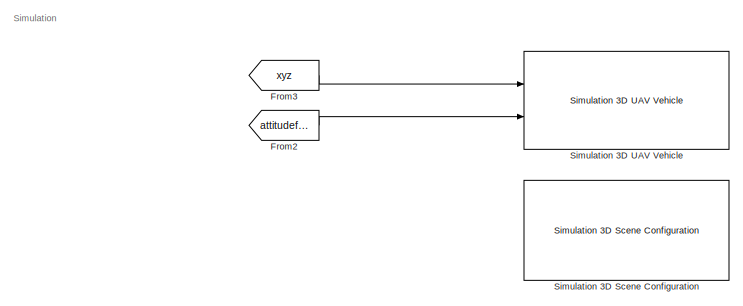
[diagram: root canvas - part 1/5, top center region]
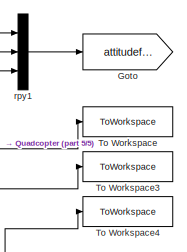
[diagram: root canvas - part 2/5, middle right region]
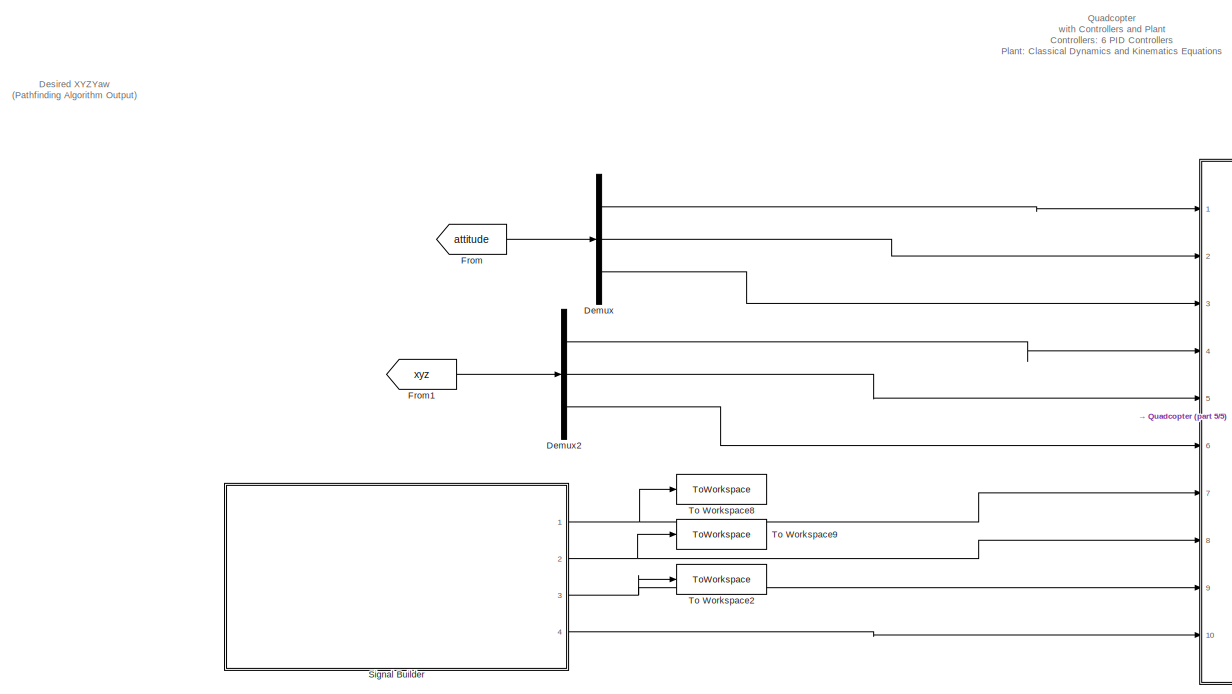
[diagram: root canvas - part 3/5, middle left region]
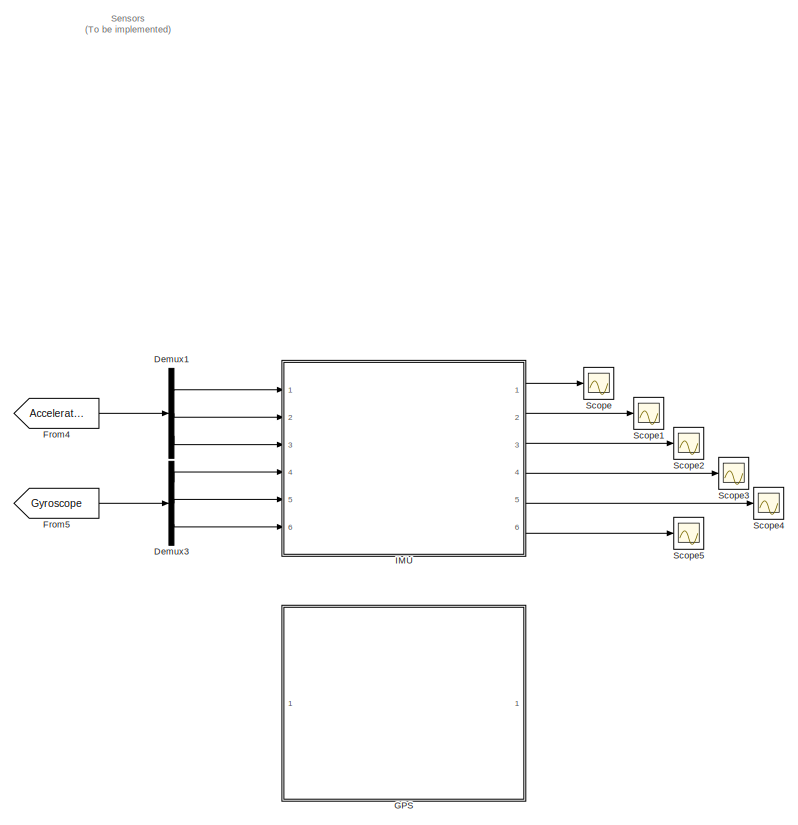
[diagram: root canvas - part 4/5, bottom right region]
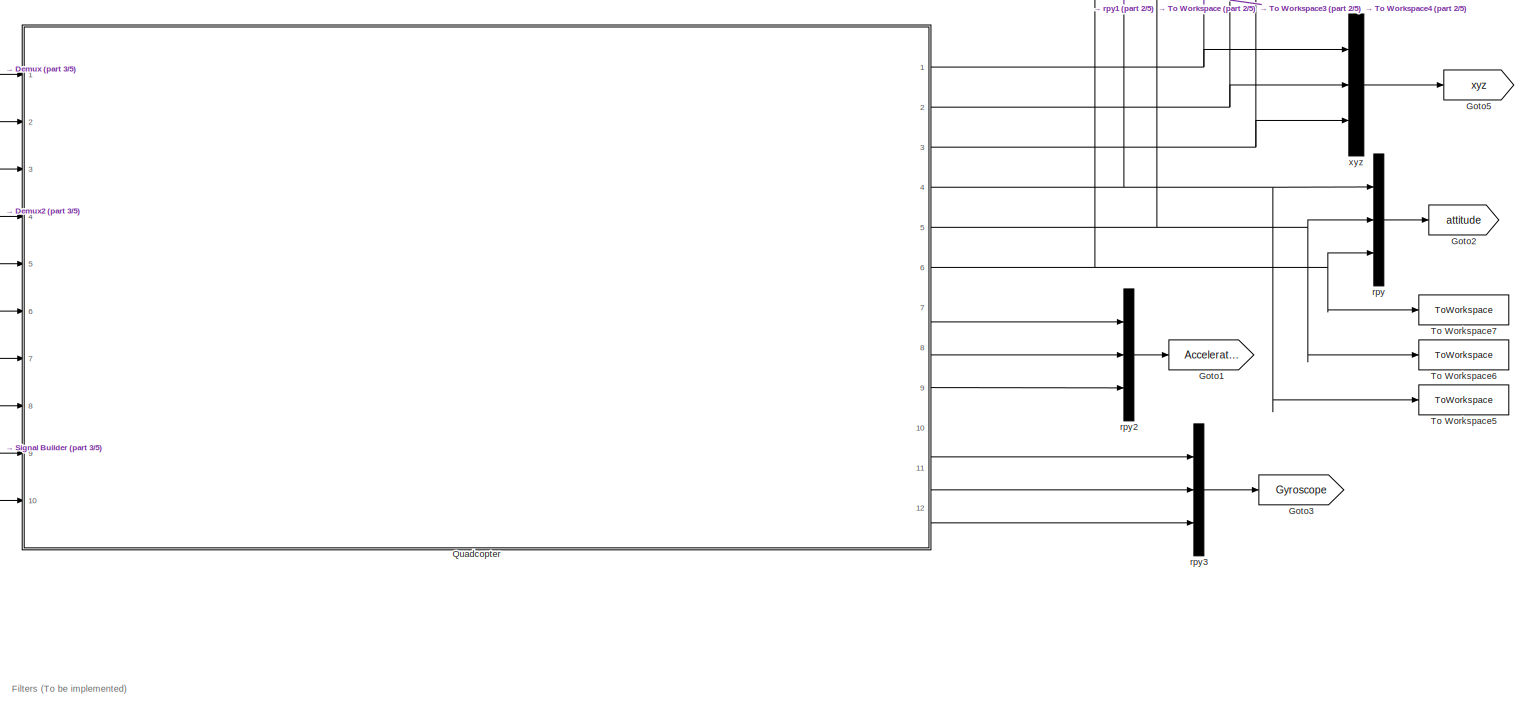
[diagram: root canvas - part 5/5, bottom center region]
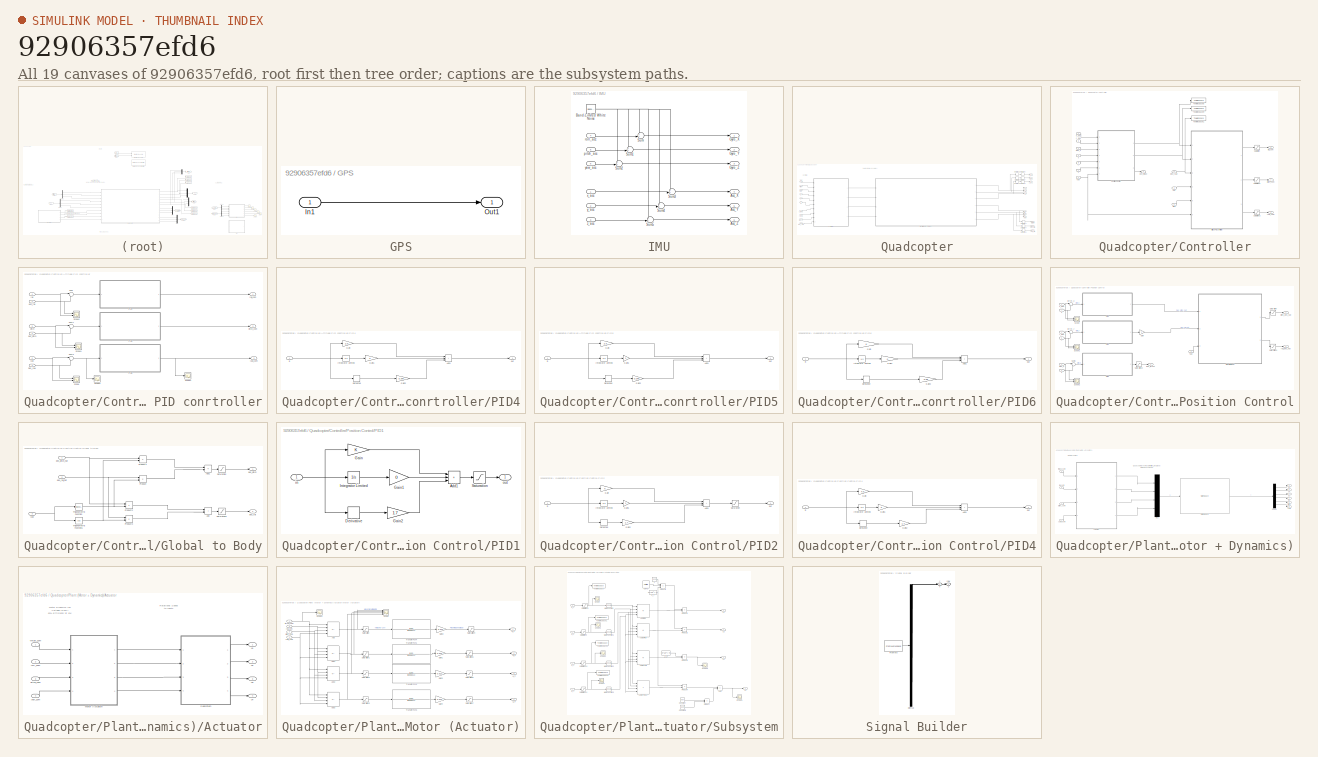
[diagram: thumbnail index - all 19 canvases of the model, root first then tree order]
MODEL slx_92906357efd6
KIND model
CONFIG AbsTol = auto
CONFIG EnableMultiTasking = off
CONFIG FixedStep = 1/600
CONFIG MaxStep = auto
CONFIG MinStep = auto
CONFIG RelTol = auto
CONFIG SampleTimeConstraint = Unconstrained
CONFIG SolverName = FixedStepAuto
CONFIG StartTime = 0.0
CONFIG StopTime = 27
BLOCK [Demux] Demux
  Outputs = 3
  Ports = [1, 3]
BLOCK [Demux] Demux1
  Outputs = 3
  Ports = [1, 3]
BLOCK [Demux] Demux2
  Outputs = 3
  Ports = [1, 3]
BLOCK [Demux] Demux3
  Outputs = 3
  Ports = [1, 3]
BLOCK [From] From
  GotoTag = attitude
BLOCK [From] From1
  GotoTag = xyz
BLOCK [From] From2
  GotoTag = attitudeforsim
BLOCK [From] From3
  GotoTag = xyz
BLOCK [From] From4
  GotoTag = Acceleration
BLOCK [From] From5
  GotoTag = Gyroscope
BLOCK [SubSystem] GPS
  Ports = [1, 1]
  RequestExecContextInheritance = off
BLOCK [Inport] GPS/In1
BLOCK [Outport] GPS/Out1
BLOCK [Goto] Goto
  GotoTag = attitudeforsim
BLOCK [Goto] Goto1
  GotoTag = Acceleration
BLOCK [Goto] Goto2
  GotoTag = attitude
BLOCK [Goto] Goto3
  GotoTag = Gyroscope
BLOCK [Goto] Goto5
  GotoTag = xyz
BLOCK [SubSystem] IMU
  Ports = [6, 6]
  RequestExecContextInheritance = off
BLOCK [Outport] IMU/Acc_X
  Port = 4
BLOCK [Outport] IMU/Acc_Y
  Port = 5
BLOCK [Outport] IMU/Acc_Z
  Port = 6
BLOCK [Reference] IMU/Band-Limited White Noise  REF=simulink/Sources/Band-Limited
White Noise
  Ports = [0, 1]
  SourceBlock = simulink/Sources/Band-Limited\nWhite Noise
  SourceProductBaseCode = SL
  SourceType = Band-Limited White Noise.
BLOCK [Outport] IMU/Gyro_X
BLOCK [Outport] IMU/Gyro_Y
  Port = 2
BLOCK [Outport] IMU/Gyro_Z
  Port = 3
BLOCK [Sum] IMU/Sum
  Inputs = ++|
  Ports = [2, 1]
BLOCK [Sum] IMU/Sum1
  Inputs = ++|
  Ports = [2, 1]
BLOCK [Sum] IMU/Sum2
  Inputs = ++|
  Ports = [2, 1]
BLOCK [Sum] IMU/Sum3
  Inputs = ++|
  Ports = [2, 1]
BLOCK [Sum] IMU/Sum4
  Inputs = ++|
  Ports = [2, 1]
BLOCK [Sum] IMU/Sum5
  Inputs = ++|
  Ports = [2, 1]
BLOCK [Inport] IMU/pitch_acc
  Port = 5
BLOCK [Inport] IMU/roll_acc
  Port = 4
BLOCK [Inport] IMU/x_acc
BLOCK [Inport] IMU/y_acc
  Port = 2
BLOCK [Inport] IMU/yaw_acc
  Port = 6
BLOCK [Inport] IMU/z_acc
  Port = 3
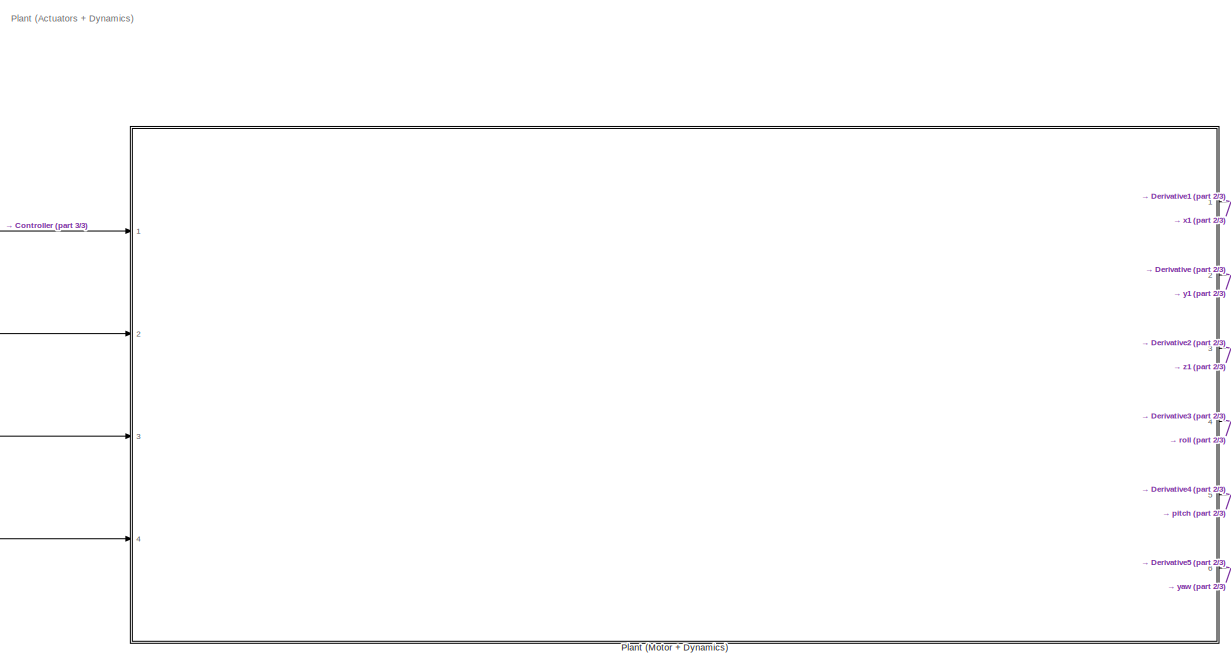
[diagram: Quadcopter - part 1/3, center side, full height]
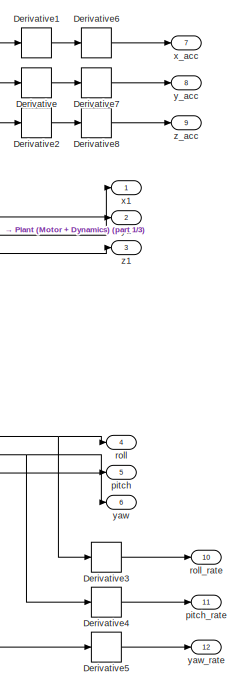
[diagram: Quadcopter - part 2/3, right side, full height]
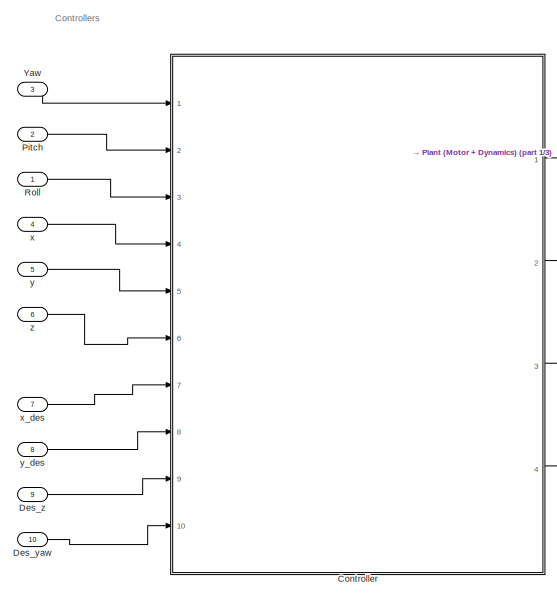
[diagram: Quadcopter - part 3/3, left side, full height]
BLOCK [SubSystem] Quadcopter
  AttributesFormatString = Quadcopter \n- Controller and Quadcopter Plant
  Description = Quadcopter including controllers and plant
  Ports = [10, 12]
  RequestExecContextInheritance = off
BLOCK [SubSystem] Quadcopter/Controller
  Ports = [10, 4]
  RequestExecContextInheritance = off
BLOCK [SubSystem] Quadcopter/Controller/Attitude PID conrtroller
  Ports = [6, 3]
  RequestExecContextInheritance = off
BLOCK [Inport] Quadcopter/Controller/Attitude PID conrtroller/Des_yaw
  Port = 3
BLOCK [SubSystem] Quadcopter/Controller/Attitude PID conrtroller/PID4
  Ports = [1, 1]
  RequestExecContextInheritance = off
BLOCK [Sum] Quadcopter/Controller/Attitude PID conrtroller/PID4/Add1
  IconShape = rectangular
  Inputs = +++
  Ports = [3, 1]
BLOCK [Derivative] Quadcopter/Controller/Attitude PID conrtroller/PID4/Derivative
BLOCK [Gain] Quadcopter/Controller/Attitude PID conrtroller/PID4/Gain
  Gain = 2.5
BLOCK [Gain] Quadcopter/Controller/Attitude PID conrtroller/PID4/Gain1
  Gain = 0
BLOCK [Gain] Quadcopter/Controller/Attitude PID conrtroller/PID4/Gain2
  Gain = 0.345
BLOCK [Integrator] Quadcopter/Controller/Attitude PID conrtroller/PID4/Integrator Limited
  LimitOutput = on
  LowerSaturationLimit = -10
  Ports = [1, 1]
  UpperSaturationLimit = 10
BLOCK [Inport] Quadcopter/Controller/Attitude PID conrtroller/PID4/in
BLOCK [Outport] Quadcopter/Controller/Attitude PID conrtroller/PID4/out
BLOCK [SubSystem] Quadcopter/Controller/Attitude PID conrtroller/PID5
  Ports = [1, 1]
  RequestExecContextInheritance = off
BLOCK [Sum] Quadcopter/Controller/Attitude PID conrtroller/PID5/Add1
  IconShape = rectangular
  Inputs = +++
  Ports = [3, 1]
BLOCK [Derivative] Quadcopter/Controller/Attitude PID conrtroller/PID5/Derivative
BLOCK [Gain] Quadcopter/Controller/Attitude PID conrtroller/PID5/Gain
  Gain = 2.5
BLOCK [Gain] Quadcopter/Controller/Attitude PID conrtroller/PID5/Gain1
  Gain = 0
BLOCK [Gain] Quadcopter/Controller/Attitude PID conrtroller/PID5/Gain2
  Gain = 0.345
BLOCK [Integrator] Quadcopter/Controller/Attitude PID conrtroller/PID5/Integrator Limited
  LimitOutput = on
  LowerSaturationLimit = -10
  Ports = [1, 1]
  UpperSaturationLimit = 10
BLOCK [Inport] Quadcopter/Controller/Attitude PID conrtroller/PID5/in
BLOCK [Outport] Quadcopter/Controller/Attitude PID conrtroller/PID5/out
BLOCK [SubSystem] Quadcopter/Controller/Attitude PID conrtroller/PID6
  Ports = [1, 1]
  RequestExecContextInheritance = off
BLOCK [Sum] Quadcopter/Controller/Attitude PID conrtroller/PID6/Add1
  IconShape = rectangular
  Inputs = +++
  Ports = [3, 1]
BLOCK [Derivative] Quadcopter/Controller/Attitude PID conrtroller/PID6/Derivative
BLOCK [Gain] Quadcopter/Controller/Attitude PID conrtroller/PID6/Gain
BLOCK [Gain] Quadcopter/Controller/Attitude PID conrtroller/PID6/Gain1
  Gain = 0
BLOCK [Gain] Quadcopter/Controller/Attitude PID conrtroller/PID6/Gain2
  Gain = 0.06
BLOCK [Integrator] Quadcopter/Controller/Attitude PID conrtroller/PID6/Integrator Limited
  LimitOutput = on
  LowerSaturationLimit = -10
  Ports = [1, 1]
  UpperSaturationLimit = 10
BLOCK [Inport] Quadcopter/Controller/Attitude PID conrtroller/PID6/in
BLOCK [Outport] Quadcopter/Controller/Attitude PID conrtroller/PID6/out
BLOCK [Scope] Quadcopter/Controller/Attitude PID conrtroller/Scope
  Floating = off
  NumInputPorts = 2
  Ports = [2]
  ScopeSpecificationString = Simulink.scopes.TimeScopeBlockCfg('CurrentConfiguration', extmgr.ConfigurationSet(extmgr.Configuration('Core','General UI',true),extmgr.Configuration('Core','Source UI',true),extmgr.Configuration('Sources','WiredSimulink',true,'DataLoggingVariableName','ScopeData1'),extmgr.Configuration('Visuals','Time Domain',true,'SerializedDisplays',{struct('MinYLimReal','0.13106','MaxYLimReal','0.69591','YLabe...<+1802ch>
BLOCK [Scope] Quadcopter/Controller/Attitude PID conrtroller/Scope1
  Floating = off
  NumInputPorts = 2
  Ports = [2]
  ScopeSpecificationString = Simulink.scopes.TimeScopeBlockCfg('CurrentConfiguration', extmgr.ConfigurationSet(extmgr.Configuration('Core','General UI',true),extmgr.Configuration('Core','Source UI',true),extmgr.Configuration('Sources','WiredSimulink',true,'DataLoggingVariableName','ScopeData1'),extmgr.Configuration('Visuals','Time Domain',true,'SerializedDisplays',{struct('MinYLimReal','-0.27099','MaxYLimReal','0.22404','YLab...<+1448ch>
BLOCK [Scope] Quadcopter/Controller/Attitude PID conrtroller/Scope2
  Floating = off
  NumInputPorts = 2
  Ports = [2]
  ScopeSpecificationString = Simulink.scopes.TimeScopeBlockCfg('CurrentConfiguration', extmgr.ConfigurationSet(extmgr.Configuration('Core','General UI',true),extmgr.Configuration('Core','Source UI',true),extmgr.Configuration('Sources','WiredSimulink',true,'DataLoggingVariableName','ScopeData2'),extmgr.Configuration('Visuals','Time Domain',true,'SerializedDisplays',{struct('MinYLimReal','-0.2194','MaxYLimReal','0.21997','YLabe...<+1775ch>
BLOCK [Scope] Quadcopter/Controller/Attitude PID conrtroller/Scope3
  Floating = off
  NumInputPorts = 1
  Ports = [1]
  ScopeSpecificationString = Simulink.scopes.TimeScopeBlockCfg('CurrentConfiguration', extmgr.ConfigurationSet(extmgr.Configuration('Core','General UI',true),extmgr.Configuration('Core','Source UI',true),extmgr.Configuration('Sources','WiredSimulink',true,'DataLoggingVariableName','ScopeData5'),extmgr.Configuration('Visuals','Time Domain',true,'SerializedDisplays',{struct('MinYLimReal','-3308.25442','MaxYLimReal','2019.25544'...<+1458ch>
BLOCK [Scope] Quadcopter/Controller/Attitude PID conrtroller/Scope4
  Floating = off
  NumInputPorts = 1
  Ports = [1]
  ScopeSpecificationString = Simulink.scopes.TimeScopeBlockCfg('CurrentConfiguration', extmgr.ConfigurationSet(extmgr.Configuration('Core','General UI',true),extmgr.Configuration('Core','Source UI',true),extmgr.Configuration('Sources','WiredSimulink',true,'DataLoggingVariableName','ScopeData6'),extmgr.Configuration('Visuals','Time Domain',true,'SerializedDisplays',{struct('MinYLimReal','28.00889','MaxYLimReal','28.39983','YLa...<+1440ch>
BLOCK [Sum] Quadcopter/Controller/Attitude PID conrtroller/Sum
  Inputs = |-+
  Ports = [2, 1]
BLOCK [Sum] Quadcopter/Controller/Attitude PID conrtroller/Sum1
  Inputs = |-+
  Ports = [2, 1]
BLOCK [Sum] Quadcopter/Controller/Attitude PID conrtroller/Sum2
  Inputs = |-+
  Ports = [2, 1]
BLOCK [Inport] Quadcopter/Controller/Attitude PID conrtroller/des_pitch
  Port = 2
BLOCK [Inport] Quadcopter/Controller/Attitude PID conrtroller/des_roll
BLOCK [Inport] Quadcopter/Controller/Attitude PID conrtroller/pitch
  Port = 5
BLOCK [Outport] Quadcopter/Controller/Attitude PID conrtroller/pitch_com
  Port = 2
BLOCK [Inport] Quadcopter/Controller/Attitude PID conrtroller/roll
  Port = 4
BLOCK [Outport] Quadcopter/Controller/Attitude PID conrtroller/roll_com
BLOCK [Inport] Quadcopter/Controller/Attitude PID conrtroller/yaw
  Port = 6
BLOCK [Outport] Quadcopter/Controller/Attitude PID conrtroller/yaw_com
  Port = 3
BLOCK [Inport] Quadcopter/Controller/Des_yaw
  Port = 10
BLOCK [Inport] Quadcopter/Controller/Des_z
  Port = 9
BLOCK [Inport] Quadcopter/Controller/Pitch
  Port = 2
BLOCK [SubSystem] Quadcopter/Controller/Position Control
  Ports = [7, 3]
  RequestExecContextInheritance = off
BLOCK [Inport] Quadcopter/Controller/Position Control/Des_z
  Port = 3
BLOCK [Sum] Quadcopter/Controller/Position Control/Error_x
  Inputs = |+-
  Ports = [2, 1]
BLOCK [Sum] Quadcopter/Controller/Position Control/Error_y
  Inputs = |+-
  Ports = [2, 1]
BLOCK [Gain] Quadcopter/Controller/Position Control/Gain
  Gain = -1
BLOCK [SubSystem] Quadcopter/Controller/Position Control/Global to Body
  Ports = [3, 2]
  RequestExecContextInheritance = off
BLOCK [Sum] Quadcopter/Controller/Position Control/Global to Body/Add
  IconShape = rectangular
  Ports = [2, 1]
BLOCK [Sum] Quadcopter/Controller/Position Control/Global to Body/Add1
  IconShape = rectangular
  Inputs = +-
  Ports = [2, 1]
BLOCK [Product] Quadcopter/Controller/Position Control/Global to Body/Product
  Ports = [2, 1]
BLOCK [Product] Quadcopter/Controller/Position Control/Global to Body/Product1
  Ports = [2, 1]
BLOCK [Product] Quadcopter/Controller/Position Control/Global to Body/Product2
  Ports = [2, 1]
BLOCK [Product] Quadcopter/Controller/Position Control/Global to Body/Product3
  Ports = [2, 1]
BLOCK [Saturate] Quadcopter/Controller/Position Control/Global to Body/Saturation
  LowerLimit = -10*pi/180
  UpperLimit = 10*pi/180
BLOCK [Saturate] Quadcopter/Controller/Position Control/Global to Body/Saturation1
  LowerLimit = -10*pi/180
  UpperLimit = 10*pi/180
BLOCK [Trigonometry] Quadcopter/Controller/Position Control/Global to Body/Trigonometric Function
  Ports = [1, 1]
BLOCK [Trigonometry] Quadcopter/Controller/Position Control/Global to Body/Trigonometric Function1
  Operator = cos
  Ports = [1, 1]
BLOCK [Outport] Quadcopter/Controller/Position Control/Global to Body/des_pitch
BLOCK [Inport] Quadcopter/Controller/Position Control/Global to Body/des_pitch_hat
BLOCK [Outport] Quadcopter/Controller/Position Control/Global to Body/des_roll
  Port = 2
BLOCK [Inport] Quadcopter/Controller/Position Control/Global to Body/des_roll_hat
  Port = 2
BLOCK [Inport] Quadcopter/Controller/Position Control/Global to Body/yaw
  Port = 3
BLOCK [SubSystem] Quadcopter/Controller/Position Control/PID1
  Ports = [1, 1]
  RequestExecContextInheritance = off
BLOCK [Sum] Quadcopter/Controller/Position Control/PID1/Add1
  IconShape = rectangular
  Inputs = +++
  Ports = [3, 1]
BLOCK [Derivative] Quadcopter/Controller/Position Control/PID1/Derivative
BLOCK [Gain] Quadcopter/Controller/Position Control/PID1/Gain
BLOCK [Gain] Quadcopter/Controller/Position Control/PID1/Gain1
  Gain = 0
BLOCK [Gain] Quadcopter/Controller/Position Control/PID1/Gain2
  Gain = 1.7
BLOCK [Integrator] Quadcopter/Controller/Position Control/PID1/Integrator Limited
  LimitOutput = on
  LowerSaturationLimit = -20
  Ports = [1, 1]
  UpperSaturationLimit = 20
BLOCK [Saturate] Quadcopter/Controller/Position Control/PID1/Saturation
  LowerLimit = -10*pi/180
  UpperLimit = 10*pi/180
BLOCK [Inport] Quadcopter/Controller/Position Control/PID1/in
BLOCK [Outport] Quadcopter/Controller/Position Control/PID1/out
BLOCK [SubSystem] Quadcopter/Controller/Position Control/PID2
  Ports = [1, 1]
  RequestExecContextInheritance = off
BLOCK [Sum] Quadcopter/Controller/Position Control/PID2/Add1
  IconShape = rectangular
  Inputs = +++
  Ports = [3, 1]
BLOCK [Derivative] Quadcopter/Controller/Position Control/PID2/Derivative
BLOCK [Gain] Quadcopter/Controller/Position Control/PID2/Gain
BLOCK [Gain] Quadcopter/Controller/Position Control/PID2/Gain1
  Gain = 0
BLOCK [Gain] Quadcopter/Controller/Position Control/PID2/Gain2
  Gain = 1.7
BLOCK [Integrator] Quadcopter/Controller/Position Control/PID2/Integrator Limited
  LimitOutput = on
  LowerSaturationLimit = -10
  Ports = [1, 1]
  UpperSaturationLimit = 10
BLOCK [Saturate] Quadcopter/Controller/Position Control/PID2/Saturation
  LowerLimit = -10*pi/180
  UpperLimit = 10*pi/180
BLOCK [Inport] Quadcopter/Controller/Position Control/PID2/in
BLOCK [Outport] Quadcopter/Controller/Position Control/PID2/out
BLOCK [SubSystem] Quadcopter/Controller/Position Control/PID4
  Ports = [1, 1]
  RequestExecContextInheritance = off
BLOCK [Sum] Quadcopter/Controller/Position Control/PID4/Add1
  IconShape = rectangular
  Inputs = +++
  Ports = [3, 1]
BLOCK [Derivative] Quadcopter/Controller/Position Control/PID4/Derivative
BLOCK [Gain] Quadcopter/Controller/Position Control/PID4/Gain
  Gain = 4.5
BLOCK [Gain] Quadcopter/Controller/Position Control/PID4/Gain1
  Gain = 0
BLOCK [Gain] Quadcopter/Controller/Position Control/PID4/Gain2
  Gain = 1.7
BLOCK [Integrator] Quadcopter/Controller/Position Control/PID4/Integrator Limited
  LimitOutput = on
  LowerSaturationLimit = -100
  Ports = [1, 1]
  UpperSaturationLimit = 100
BLOCK [Inport] Quadcopter/Controller/Position Control/PID4/in
BLOCK [Outport] Quadcopter/Controller/Position Control/PID4/out
BLOCK [Saturate] Quadcopter/Controller/Position Control/Saturation
  LowerLimit = -10*pi/180
  UpperLimit = 10*pi/180
BLOCK [Saturate] Quadcopter/Controller/Position Control/Saturation1
  LowerLimit = -10*pi/180
  UpperLimit = 10*pi/180
BLOCK [Saturate] Quadcopter/Controller/Position Control/Saturation2
  Commented = through
  LowerLimit = 0
  UpperLimit = 17
BLOCK [Scope] Quadcopter/Controller/Position Control/Scope
  Floating = off
  NumInputPorts = 2
  Ports = [2]
  ScopeSpecificationString = Simulink.scopes.TimeScopeBlockCfg('CurrentConfiguration', extmgr.ConfigurationSet(extmgr.Configuration('Core','General UI',true),extmgr.Configuration('Core','Source UI',true),extmgr.Configuration('Sources','WiredSimulink',true,'DataLoggingVariableName','ScopeData1'),extmgr.Configuration('Visuals','Time Domain',true,'SerializedDisplays',{struct('MinYLimReal','-0.25','MaxYLimReal','2.25','YLabelReal...<+1379ch>
BLOCK [Scope] Quadcopter/Controller/Position Control/Scope1
  Floating = off
  NumInputPorts = 2
  Ports = [2]
  ScopeSpecificationString = Simulink.scopes.TimeScopeBlockCfg('CurrentConfiguration', extmgr.ConfigurationSet(extmgr.Configuration('Core','General UI',true),extmgr.Configuration('Core','Source UI',true),extmgr.Configuration('Sources','WiredSimulink',true,'DataLoggingVariableName','ScopeData2'),extmgr.Configuration('Visuals','Time Domain',true,'SerializedDisplays',{struct('MinYLimReal','-0.25','MaxYLimReal','2.25','YLabelReal...<+1350ch>
BLOCK [Scope] Quadcopter/Controller/Position Control/Scope2
  Floating = off
  NumInputPorts = 2
  Ports = [2]
  ScopeSpecificationString = Simulink.scopes.TimeScopeBlockCfg('CurrentConfiguration', extmgr.ConfigurationSet(extmgr.Configuration('Core','General UI',true),extmgr.Configuration('Core','Source UI',true),extmgr.Configuration('Sources','WiredSimulink',true,'DataLoggingVariableName','ScopeData3'),extmgr.Configuration('Visuals','Time Domain',true,'SerializedDisplays',{struct('MinYLimReal','-0.37505','MaxYLimReal','3.37501','YLab...<+1423ch>
BLOCK [Sum] Quadcopter/Controller/Position Control/Sum3
  Inputs = |+-
  Ports = [2, 1]
BLOCK [Inport] Quadcopter/Controller/Position Control/Yaw
  Port = 7
BLOCK [Outport] Quadcopter/Controller/Position Control/des_thrust
  Port = 3
BLOCK [Outport] Quadcopter/Controller/Position Control/pitch_des_hat
  Port = 2
BLOCK [Outport] Quadcopter/Controller/Position Control/roll_des_hat
BLOCK [Inport] Quadcopter/Controller/Position Control/x
  Port = 4
BLOCK [Inport] Quadcopter/Controller/Position Control/x_des
BLOCK [Inport] Quadcopter/Controller/Position Control/y
  Port = 5
BLOCK [Inport] Quadcopter/Controller/Position Control/y_des
  Port = 2
BLOCK [Inport] Quadcopter/Controller/Position Control/z
  Port = 6
BLOCK [Inport] Quadcopter/Controller/Roll
  Port = 3
BLOCK [Saturate] Quadcopter/Controller/Saturation
  Commented = through
  LowerLimit = -4
  UpperLimit = 4
BLOCK [Saturate] Quadcopter/Controller/Saturation1
  Commented = through
  LowerLimit = -1
  UpperLimit = 1
BLOCK [Saturate] Quadcopter/Controller/Saturation2
  Commented = through
  LowerLimit = -1
  UpperLimit = 1
BLOCK [ToWorkspace] Quadcopter/Controller/To Workspace1
  FixptAsFi = on
  MaxDataPoints = inf
  Ports = [1]
  SampleTime = -1
  SaveFormat = Timeseries
  VariableName = des_yaw
BLOCK [ToWorkspace] Quadcopter/Controller/To Workspace8
  FixptAsFi = on
  MaxDataPoints = inf
  Ports = [1]
  SampleTime = -1
  SaveFormat = Timeseries
  VariableName = des_roll
BLOCK [ToWorkspace] Quadcopter/Controller/To Workspace9
  FixptAsFi = on
  MaxDataPoints = inf
  Ports = [1]
  SampleTime = -1
  SaveFormat = Timeseries
  VariableName = des_pitch
BLOCK [Inport] Quadcopter/Controller/Yaw
BLOCK [Outport] Quadcopter/Controller/des_thrust
  Port = 4
BLOCK [Outport] Quadcopter/Controller/pitch_com
  Port = 2
BLOCK [Outport] Quadcopter/Controller/roll_com
BLOCK [Inport] Quadcopter/Controller/x
  Port = 4
BLOCK [Inport] Quadcopter/Controller/x_des
  Port = 7
BLOCK [Inport] Quadcopter/Controller/y
  Port = 5
BLOCK [Inport] Quadcopter/Controller/y_des
  Port = 8
BLOCK [Outport] Quadcopter/Controller/yaw_com
  Port = 3
BLOCK [Inport] Quadcopter/Controller/z
  Port = 6
BLOCK [Derivative] Quadcopter/Derivative
BLOCK [Derivative] Quadcopter/Derivative1
BLOCK [Derivative] Quadcopter/Derivative2
BLOCK [Derivative] Quadcopter/Derivative3
BLOCK [Derivative] Quadcopter/Derivative4
BLOCK [Derivative] Quadcopter/Derivative5
BLOCK [Derivative] Quadcopter/Derivative6
BLOCK [Derivative] Quadcopter/Derivative7
BLOCK [Derivative] Quadcopter/Derivative8
BLOCK [Inport] Quadcopter/Des_yaw
  Port = 10
BLOCK [Inport] Quadcopter/Des_z
  Port = 9
BLOCK [Inport] Quadcopter/Pitch
  Port = 2
BLOCK [SubSystem] Quadcopter/Plant (Motor + Dynamics)
  Ports = [4, 6]
  RequestExecContextInheritance = off
BLOCK [SubSystem] Quadcopter/Plant (Motor + Dynamics)/Actuator
  Ports = [4, 4]
  RequestExecContextInheritance = off
BLOCK [SubSystem] Quadcopter/Plant (Motor + Dynamics)/Actuator/Motor (Actuator)
  Ports = [4, 4]
  RequestExecContextInheritance = off
BLOCK [Sum] Quadcopter/Plant (Motor + Dynamics)/Actuator/Motor (Actuator)/Add
  IconShape = rectangular
  Inputs = ++-+
  Ports = [4, 1]
BLOCK [Sum] Quadcopter/Plant (Motor + Dynamics)/Actuator/Motor (Actuator)/Add1
  IconShape = rectangular
  Inputs = +---
  Ports = [4, 1]
BLOCK [Sum] Quadcopter/Plant (Motor + Dynamics)/Actuator/Motor (Actuator)/Add2
  IconShape = rectangular
  Inputs = +-++
  Ports = [4, 1]
BLOCK [Sum] Quadcopter/Plant (Motor + Dynamics)/Actuator/Motor (Actuator)/Add3
  IconShape = rectangular
  Inputs = +++-
  Ports = [4, 1]
BLOCK [Gain] Quadcopter/Plant (Motor + Dynamics)/Actuator/Motor (Actuator)/Gain1
  Gain = 0.612
BLOCK [Gain] Quadcopter/Plant (Motor + Dynamics)/Actuator/Motor (Actuator)/Gain2
  Gain = 0.612
BLOCK [Gain] Quadcopter/Plant (Motor + Dynamics)/Actuator/Motor (Actuator)/Gain3
  Gain = 0.612
BLOCK [Gain] Quadcopter/Plant (Motor + Dynamics)/Actuator/Motor (Actuator)/Gain4
  Gain = 0.612
BLOCK [Saturate] Quadcopter/Plant (Motor + Dynamics)/Actuator/Motor (Actuator)/Saturation
  LowerLimit = 0
  UpperLimit = 10
BLOCK [Saturate] Quadcopter/Plant (Motor + Dynamics)/Actuator/Motor (Actuator)/Saturation1
  LowerLimit = 0
  UpperLimit = 10
BLOCK [Saturate] Quadcopter/Plant (Motor + Dynamics)/Actuator/Motor (Actuator)/Saturation2
  LowerLimit = 0
  UpperLimit = 10
BLOCK [Saturate] Quadcopter/Plant (Motor + Dynamics)/Actuator/Motor (Actuator)/Saturation3
  LowerLimit = 0
  UpperLimit = 10
BLOCK [Saturate] Quadcopter/Plant (Motor + Dynamics)/Actuator/Motor (Actuator)/Saturation4
  LowerLimit = 0
  UpperLimit = 1040
BLOCK [Saturate] Quadcopter/Plant (Motor + Dynamics)/Actuator/Motor (Actuator)/Saturation5
  LowerLimit = 0
  UpperLimit = 1040
BLOCK [Saturate] Quadcopter/Plant (Motor + Dynamics)/Actuator/Motor (Actuator)/Saturation6
  LowerLimit = 0
  UpperLimit = 1040
BLOCK [Saturate] Quadcopter/Plant (Motor + Dynamics)/Actuator/Motor (Actuator)/Saturation7
  LowerLimit = 0
  UpperLimit = 1040
BLOCK [Scope] Quadcopter/Plant (Motor + Dynamics)/Actuator/Motor (Actuator)/Scope
  Floating = off
  NumInputPorts = 4
  Ports = [4]
  ScopeSpecificationString = Simulink.scopes.TimeScopeBlockCfg('CurrentConfiguration', extmgr.ConfigurationSet(extmgr.Configuration('Core','General UI',true),extmgr.Configuration('Core','Source UI',true),extmgr.Configuration('Sources','WiredSimulink',true,'DataLoggingVariableName','ScopeData1'),extmgr.Configuration('Visuals','Time Domain',true,'SerializedDisplays',{struct('MinYLimReal','-13.826','MaxYLimReal','19.89869','YLab...<+1454ch>
BLOCK [Scope] Quadcopter/Plant (Motor + Dynamics)/Actuator/Motor (Actuator)/Scope1
  Floating = off
  NumInputPorts = 1
  Ports = [1]
  ScopeSpecificationString = Simulink.scopes.TimeScopeBlockCfg('CurrentConfiguration', extmgr.ConfigurationSet(extmgr.Configuration('Core','General UI',true),extmgr.Configuration('Core','Source UI',true),extmgr.Configuration('Sources','WiredSimulink',true,'DataLoggingVariableName','ScopeData2'),extmgr.Configuration('Visuals','Time Domain',true,'SerializedDisplays',{struct('MinYLimReal','-13.826','MaxYLimReal','19.89869','YLab...<+1419ch>
BLOCK [TransferFcn] Quadcopter/Plant (Motor + Dynamics)/Actuator/Motor (Actuator)/Transfer Fcn1
  Denominator = [0.00881 1]
  Numerator = [120]
BLOCK [TransferFcn] Quadcopter/Plant (Motor + Dynamics)/Actuator/Motor (Actuator)/Transfer Fcn2
  Denominator = [0.00881 1]
  Numerator = [120]
BLOCK [TransferFcn] Quadcopter/Plant (Motor + Dynamics)/Actuator/Motor (Actuator)/Transfer Fcn3
  Denominator = [0.00881 1]
  Numerator = [120]
BLOCK [TransferFcn] Quadcopter/Plant (Motor + Dynamics)/Actuator/Motor (Actuator)/Transfer Fcn4
  Denominator = [0.00881 1]
  Numerator = [120]
BLOCK [Inport] Quadcopter/Plant (Motor + Dynamics)/Actuator/Motor (Actuator)/pitch_com
  Port = 3
BLOCK [Inport] Quadcopter/Plant (Motor + Dynamics)/Actuator/Motor (Actuator)/roll_com
  Port = 2
BLOCK [Inport] Quadcopter/Plant (Motor + Dynamics)/Actuator/Motor (Actuator)/thrust_com
BLOCK [Inport] Quadcopter/Plant (Motor + Dynamics)/Actuator/Motor (Actuator)/yaw_com
  Port = 4
BLOCK [Outport] Quadcopter/Plant (Motor + Dynamics)/Actuator/Motor (Actuator)/ω_1
BLOCK [Outport] Quadcopter/Plant (Motor + Dynamics)/Actuator/Motor (Actuator)/ω_2
  Port = 2
BLOCK [Outport] Quadcopter/Plant (Motor + Dynamics)/Actuator/Motor (Actuator)/ω_3
  Port = 3
BLOCK [Outport] Quadcopter/Plant (Motor + Dynamics)/Actuator/Motor (Actuator)/ω_4
  Port = 4
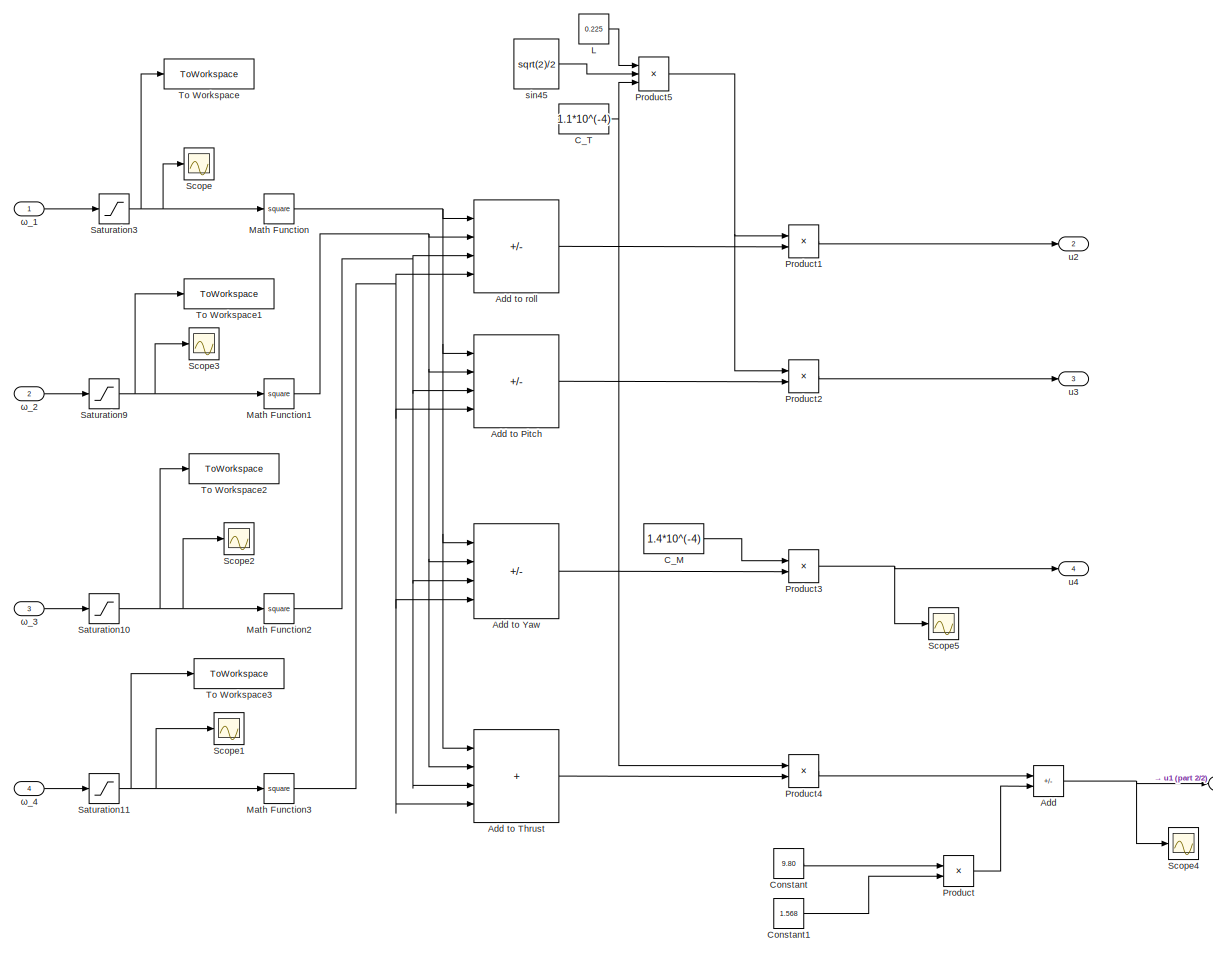
[diagram: Quadcopter/Plant (Motor + Dynamics)/Actuator/Subsystem - part 1/2, most of the canvas]
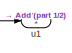
[diagram: Quadcopter/Plant (Motor + Dynamics)/Actuator/Subsystem - part 2/2, bottom right region]
BLOCK [SubSystem] Quadcopter/Plant (Motor + Dynamics)/Actuator/Subsystem
  Ports = [4, 4]
  RequestExecContextInheritance = off
BLOCK [Sum] Quadcopter/Plant (Motor + Dynamics)/Actuator/Subsystem/Add
  IconShape = rectangular
  Inputs = +-
  Ports = [2, 1]
BLOCK [Sum] Quadcopter/Plant (Motor + Dynamics)/Actuator/Subsystem/Add to Pitch
  IconShape = rectangular
  Inputs = --++
  Ports = [4, 1]
  RndMeth = Round
BLOCK [Sum] Quadcopter/Plant (Motor + Dynamics)/Actuator/Subsystem/Add to Thrust
  IconShape = rectangular
  Inputs = ++++
  Ports = [4, 1]
  RndMeth = Round
BLOCK [Sum] Quadcopter/Plant (Motor + Dynamics)/Actuator/Subsystem/Add to Yaw
  IconShape = rectangular
  Inputs = +-+-
  Ports = [4, 1]
  RndMeth = Round
BLOCK [Sum] Quadcopter/Plant (Motor + Dynamics)/Actuator/Subsystem/Add to roll
  IconShape = rectangular
  Inputs = +--+
  Ports = [4, 1]
BLOCK [Constant] Quadcopter/Plant (Motor + Dynamics)/Actuator/Subsystem/C_M
  Value = 1.4*10^(-4)
BLOCK [Constant] Quadcopter/Plant (Motor + Dynamics)/Actuator/Subsystem/C_T
  Value = 1.1*10^(-4)
BLOCK [Constant] Quadcopter/Plant (Motor + Dynamics)/Actuator/Subsystem/Constant
  Value = 9.80
BLOCK [Constant] Quadcopter/Plant (Motor + Dynamics)/Actuator/Subsystem/Constant1
  Value = 1.568
BLOCK [Constant] Quadcopter/Plant (Motor + Dynamics)/Actuator/Subsystem/L
  Value = 0.225
BLOCK [Math] Quadcopter/Plant (Motor + Dynamics)/Actuator/Subsystem/Math Function
  Operator = square
  Ports = [1, 1]
  RndMeth = Round
BLOCK [Math] Quadcopter/Plant (Motor + Dynamics)/Actuator/Subsystem/Math Function1
  Operator = square
  Ports = [1, 1]
BLOCK [Math] Quadcopter/Plant (Motor + Dynamics)/Actuator/Subsystem/Math Function2
  Operator = square
  Ports = [1, 1]
BLOCK [Math] Quadcopter/Plant (Motor + Dynamics)/Actuator/Subsystem/Math Function3
  Operator = square
  Ports = [1, 1]
BLOCK [Product] Quadcopter/Plant (Motor + Dynamics)/Actuator/Subsystem/Product
  Ports = [2, 1]
BLOCK [Product] Quadcopter/Plant (Motor + Dynamics)/Actuator/Subsystem/Product1
  Ports = [2, 1]
BLOCK [Product] Quadcopter/Plant (Motor + Dynamics)/Actuator/Subsystem/Product2
  Ports = [2, 1]
BLOCK [Product] Quadcopter/Plant (Motor + Dynamics)/Actuator/Subsystem/Product3
  Ports = [2, 1]
BLOCK [Product] Quadcopter/Plant (Motor + Dynamics)/Actuator/Subsystem/Product4
  Ports = [2, 1]
BLOCK [Product] Quadcopter/Plant (Motor + Dynamics)/Actuator/Subsystem/Product5
  Inputs = 3
  Ports = [3, 1]
BLOCK [Saturate] Quadcopter/Plant (Motor + Dynamics)/Actuator/Subsystem/Saturation10
  LowerLimit = 0
  UpperLimit = 1000
BLOCK [Saturate] Quadcopter/Plant (Motor + Dynamics)/Actuator/Subsystem/Saturation11
  LowerLimit = 0
  UpperLimit = 1000
BLOCK [Saturate] Quadcopter/Plant (Motor + Dynamics)/Actuator/Subsystem/Saturation3
  LowerLimit = 0
  UpperLimit = 1000
BLOCK [Saturate] Quadcopter/Plant (Motor + Dynamics)/Actuator/Subsystem/Saturation9
  LowerLimit = 0
  UpperLimit = 1000
BLOCK [Scope] Quadcopter/Plant (Motor + Dynamics)/Actuator/Subsystem/Scope
  Floating = off
  NumInputPorts = 1
  Ports = [1]
  ScopeSpecificationString = Simulink.scopes.TimeScopeBlockCfg('CurrentConfiguration', extmgr.ConfigurationSet(extmgr.Configuration('Core','General UI',true),extmgr.Configuration('Core','Source UI',true),extmgr.Configuration('Sources','WiredSimulink',true,'DataLoggingVariableName','ScopeData1'),extmgr.Configuration('Visuals','Time Domain',true,'SerializedDisplays',{struct('MinYLimReal','-24.54353','MaxYLimReal','497.86343','Y...<+1456ch>
BLOCK [Scope] Quadcopter/Plant (Motor + Dynamics)/Actuator/Subsystem/Scope1
  Floating = off
  NumInputPorts = 1
  Ports = [1]
  ScopeSpecificationString = Simulink.scopes.TimeScopeBlockCfg('CurrentConfiguration', extmgr.ConfigurationSet(extmgr.Configuration('Core','General UI',true),extmgr.Configuration('Core','Source UI',true),extmgr.Configuration('Sources','WiredSimulink',true,'DataLoggingVariableName','ScopeData2'),extmgr.Configuration('Visuals','Time Domain',true,'SerializedDisplays',{struct('MinYLimReal','-88.58731','MaxYLimReal','797.28581','Y...<+1454ch>
BLOCK [Scope] Quadcopter/Plant (Motor + Dynamics)/Actuator/Subsystem/Scope2
  Floating = off
  NumInputPorts = 1
  Ports = [1]
  ScopeSpecificationString = Simulink.scopes.TimeScopeBlockCfg('CurrentConfiguration', extmgr.ConfigurationSet(extmgr.Configuration('Core','General UI',true),extmgr.Configuration('Core','Source UI',true),extmgr.Configuration('Sources','WiredSimulink',true,'DataLoggingVariableName','ScopeData3'),extmgr.Configuration('Visuals','Time Domain',true,'SerializedDisplays',{struct('MinYLimReal','-91.8','MaxYLimReal','826.2','YLabelRea...<+1431ch>
BLOCK [Scope] Quadcopter/Plant (Motor + Dynamics)/Actuator/Subsystem/Scope3
  Floating = off
  NumInputPorts = 1
  Ports = [1]
  ScopeSpecificationString = Simulink.scopes.TimeScopeBlockCfg('CurrentConfiguration', extmgr.ConfigurationSet(extmgr.Configuration('Core','General UI',true),extmgr.Configuration('Core','Source UI',true),extmgr.Configuration('Sources','WiredSimulink',true,'DataLoggingVariableName','ScopeData4'),extmgr.Configuration('Visuals','Time Domain',true,'SerializedDisplays',{struct('MinYLimReal','163.2','MaxYLimReal','210.46829','YLabe...<+1444ch>
BLOCK [Scope] Quadcopter/Plant (Motor + Dynamics)/Actuator/Subsystem/Scope4
  Floating = off
  NumInputPorts = 1
  Ports = [1]
  ScopeSpecificationString = Simulink.scopes.TimeScopeBlockCfg('CurrentConfiguration', extmgr.ConfigurationSet(extmgr.Configuration('Core','General UI',true),extmgr.Configuration('Core','Source UI',true),extmgr.Configuration('Sources','WiredSimulink',true,'DataLoggingVariableName','ScopeData2'),extmgr.Configuration('Visuals','Time Domain',true,'SerializedDisplays',{struct('MinYLimReal','-42.99035','MaxYLimReal','233.24911','Y...<+1436ch>
BLOCK [Scope] Quadcopter/Plant (Motor + Dynamics)/Actuator/Subsystem/Scope5
  Floating = off
  NumInputPorts = 1
  Ports = [1]
  ScopeSpecificationString = Simulink.scopes.TimeScopeBlockCfg('CurrentConfiguration', extmgr.ConfigurationSet(extmgr.Configuration('Core','General UI',true),extmgr.Configuration('Core','Source UI',true),extmgr.Configuration('Sources','WiredSimulink',true,'DataLoggingVariableName','ScopeData7'),extmgr.Configuration('Visuals','Time Domain',true,'SerializedDisplays',{struct('MinYLimReal','-0.2678','MaxYLimReal','3.28134','YLabe...<+1443ch>
BLOCK [ToWorkspace] Quadcopter/Plant (Motor + Dynamics)/Actuator/Subsystem/To Workspace
  FixptAsFi = on
  MaxDataPoints = inf
  Ports = [1]
  SampleTime = -1
  SaveFormat = Timeseries
  VariableName = motor1
BLOCK [ToWorkspace] Quadcopter/Plant (Motor + Dynamics)/Actuator/Subsystem/To Workspace1
  FixptAsFi = on
  MaxDataPoints = inf
  Ports = [1]
  SampleTime = -1
  SaveFormat = Timeseries
  VariableName = motor2
BLOCK [ToWorkspace] Quadcopter/Plant (Motor + Dynamics)/Actuator/Subsystem/To Workspace2
  FixptAsFi = on
  MaxDataPoints = inf
  Ports = [1]
  SampleTime = -1
  SaveFormat = Timeseries
  VariableName = motor3
BLOCK [ToWorkspace] Quadcopter/Plant (Motor + Dynamics)/Actuator/Subsystem/To Workspace3
  FixptAsFi = on
  MaxDataPoints = inf
  Ports = [1]
  SampleTime = -1
  SaveFormat = Timeseries
  VariableName = motor4
BLOCK [Constant] Quadcopter/Plant (Motor + Dynamics)/Actuator/Subsystem/sin45
  Value = sqrt(2)/2
BLOCK [Outport] Quadcopter/Plant (Motor + Dynamics)/Actuator/Subsystem/u1
BLOCK [Outport] Quadcopter/Plant (Motor + Dynamics)/Actuator/Subsystem/u2
  Port = 2
BLOCK [Outport] Quadcopter/Plant (Motor + Dynamics)/Actuator/Subsystem/u3
  Port = 3
BLOCK [Outport] Quadcopter/Plant (Motor + Dynamics)/Actuator/Subsystem/u4
  Port = 4
BLOCK [Inport] Quadcopter/Plant (Motor + Dynamics)/Actuator/Subsystem/ω_1
BLOCK [Inport] Quadcopter/Plant (Motor + Dynamics)/Actuator/Subsystem/ω_2
  Port = 2
BLOCK [Inport] Quadcopter/Plant (Motor + Dynamics)/Actuator/Subsystem/ω_3
  Port = 3
BLOCK [Inport] Quadcopter/Plant (Motor + Dynamics)/Actuator/Subsystem/ω_4
  Port = 4
BLOCK [Inport] Quadcopter/Plant (Motor + Dynamics)/Actuator/pitch_com
  Port = 3
BLOCK [Inport] Quadcopter/Plant (Motor + Dynamics)/Actuator/roll_com
  Port = 2
BLOCK [Inport] Quadcopter/Plant (Motor + Dynamics)/Actuator/thrust_com
BLOCK [Outport] Quadcopter/Plant (Motor + Dynamics)/Actuator/u1
BLOCK [Outport] Quadcopter/Plant (Motor + Dynamics)/Actuator/u2
  Port = 2
BLOCK [Outport] Quadcopter/Plant (Motor + Dynamics)/Actuator/u3
  Port = 3
BLOCK [Outport] Quadcopter/Plant (Motor + Dynamics)/Actuator/u4
  Port = 4
BLOCK [Inport] Quadcopter/Plant (Motor + Dynamics)/Actuator/yaw_com
  Port = 4
BLOCK [Demux] Quadcopter/Plant (Motor + Dynamics)/Demux
  Outputs = 6
  Ports = [1, 6]
BLOCK [Mux] Quadcopter/Plant (Motor + Dynamics)/Mux
  DisplayOption = bar
  Ports = [4, 1]
BLOCK [StateSpace] Quadcopter/Plant (Motor + Dynamics)/State-Space
  A = [0 0 0 0 0 0 1 0 0 0 0 0 ; \n     0 0 0 0 0 0 0 1 0 0 0 0 ;\n     0 0 0 0 0 0 0 0 1 0 0 0 ;\n     0 0 0 0 0 0 0 0 0 1 0 0 ;\n     0 0 0 0 0 0 0 0 0 0 1 0 ;\n     0 0 0 0 0 0 0 0 0 0 0 1 ;\n     0 0 0 0 9.80 0 0 0 0 0 0 0 ;\n     0 0 0 -9.80 0 0 0 0 0 0 0 0 ;\n     0 0 0 0 0 0 0 0 0 0 0 0 ;\n     0 0 0 0 0 0 0 0 0 0 0 0 ;\n     0 0 0 0 0 0 0 0 0 0 0 0 ;\n     0 0 0 0 0 0 0 0 0 0 0 0]
  B = [0 0 0 0;\n     0 0 0 0;\n     0 0 0 0;\n     0 0 0 0;\n     0 0 0 0;\n     0 0 0 0;\n     0 0 0 0;\n     0 0 0 0;\n     (1/1.568) 0 0 0;\n     0 (1/0.0090) 0 0;\n     0 0 (1/0.0090) 0;\n     0 0 0 (1/0.017)]
  C = [1 0 0 0 0 0 0 0 0 0 0 0;\n     0 1 0 0 0 0 0 0 0 0 0 0;\n     0 0 1 0 0 0 0 0 0 0 0 0;\n     0 0 0 1 0 0 0 0 0 0 0 0;\n     0 0 0 0 1 0 0 0 0 0 0 0;\n     0 0 0 0 0 1 0 0 0 0 0 0]
  ContinuousStateAttributes = 'state'
  D = [0 0 0 0 ; \n     0 0 0 0 ;\n     0 0 0 0 ;\n     0 0 0 0 ;\n     0 0 0 0 ;\n     0 0 0 0 ]
  InitialCondition = [0 0 0 0 0 0 0 0 0 0 0 0]
  Ports = [1, 1]
BLOCK [Outport] Quadcopter/Plant (Motor + Dynamics)/pitch
  Port = 5
BLOCK [Inport] Quadcopter/Plant (Motor + Dynamics)/pitch_com
  Port = 2
BLOCK [Outport] Quadcopter/Plant (Motor + Dynamics)/roll
  Port = 4
BLOCK [Inport] Quadcopter/Plant (Motor + Dynamics)/roll_com
BLOCK [Inport] Quadcopter/Plant (Motor + Dynamics)/thrust_com
  Port = 4
BLOCK [Outport] Quadcopter/Plant (Motor + Dynamics)/x1
BLOCK [Outport] Quadcopter/Plant (Motor + Dynamics)/y1
  Port = 2
BLOCK [Outport] Quadcopter/Plant (Motor + Dynamics)/yaw
  Port = 6
BLOCK [Inport] Quadcopter/Plant (Motor + Dynamics)/yaw_com
  Port = 3
BLOCK [Outport] Quadcopter/Plant (Motor + Dynamics)/z1
  Port = 3
BLOCK [Inport] Quadcopter/Roll
BLOCK [Inport] Quadcopter/Yaw
  Port = 3
BLOCK [Outport] Quadcopter/pitch
  Port = 5
BLOCK [Outport] Quadcopter/pitch_rate
  Port = 11
BLOCK [Outport] Quadcopter/roll
  Port = 4
BLOCK [Outport] Quadcopter/roll_rate
  Port = 10
BLOCK [Inport] Quadcopter/x
  Port = 4
BLOCK [Outport] Quadcopter/x1
BLOCK [Outport] Quadcopter/x_acc
  Port = 7
BLOCK [Inport] Quadcopter/x_des
  Port = 7
BLOCK [Inport] Quadcopter/y
  Port = 5
BLOCK [Outport] Quadcopter/y1
  Port = 2
BLOCK [Outport] Quadcopter/y_acc
  Port = 8
BLOCK [Inport] Quadcopter/y_des
  Port = 8
BLOCK [Outport] Quadcopter/yaw
  Port = 6
BLOCK [Outport] Quadcopter/yaw_rate
  Port = 12
BLOCK [Inport] Quadcopter/z
  Port = 6
BLOCK [Outport] Quadcopter/z1
  Port = 3
BLOCK [Outport] Quadcopter/z_acc
  Port = 9
BLOCK [Scope] Scope
  Floating = off
  NumInputPorts = 1
  Ports = [1]
  ScopeSpecificationString = Simulink.scopes.TimeScopeBlockCfg('CurrentConfiguration', extmgr.ConfigurationSet(extmgr.Configuration('Core','General UI',true),extmgr.Configuration('Core','Source UI',true),extmgr.Configuration('Sources','WiredSimulink',true,'DataLoggingVariableName','ScopeData1'),extmgr.Configuration('Visuals','Time Domain',true),extmgr.Configuration('Tools','Plot Navigation',true),extmgr.Configuration('Tools',...<+40ch>
BLOCK [Scope] Scope1
  Floating = off
  NumInputPorts = 1
  Ports = [1]
  ScopeSpecificationString = Simulink.scopes.TimeScopeBlockCfg('CurrentConfiguration', extmgr.ConfigurationSet(extmgr.Configuration('Core','General UI',true),extmgr.Configuration('Core','Source UI',true),extmgr.Configuration('Sources','WiredSimulink',true,'DataLoggingVariableName','ScopeData2'),extmgr.Configuration('Visuals','Time Domain',true),extmgr.Configuration('Tools','Plot Navigation',true),extmgr.Configuration('Tools',...<+40ch>
BLOCK [Scope] Scope2
  Floating = off
  NumInputPorts = 1
  Ports = [1]
  ScopeSpecificationString = Simulink.scopes.TimeScopeBlockCfg('CurrentConfiguration', extmgr.ConfigurationSet(extmgr.Configuration('Core','General UI',true),extmgr.Configuration('Core','Source UI',true),extmgr.Configuration('Sources','WiredSimulink',true,'DataLoggingVariableName','ScopeData3'),extmgr.Configuration('Visuals','Time Domain',true),extmgr.Configuration('Tools','Plot Navigation',true),extmgr.Configuration('Tools',...<+40ch>
BLOCK [Scope] Scope3
  Floating = off
  NumInputPorts = 1
  Ports = [1]
  ScopeSpecificationString = Simulink.scopes.TimeScopeBlockCfg('CurrentConfiguration', extmgr.ConfigurationSet(extmgr.Configuration('Core','General UI',true),extmgr.Configuration('Core','Source UI',true),extmgr.Configuration('Sources','WiredSimulink',true,'DataLoggingVariableName','ScopeData4'),extmgr.Configuration('Visuals','Time Domain',true),extmgr.Configuration('Tools','Plot Navigation',true),extmgr.Configuration('Tools',...<+40ch>
BLOCK [Scope] Scope4
  Floating = off
  NumInputPorts = 1
  Ports = [1]
  ScopeSpecificationString = Simulink.scopes.TimeScopeBlockCfg('CurrentConfiguration', extmgr.ConfigurationSet(extmgr.Configuration('Core','General UI',true),extmgr.Configuration('Core','Source UI',true),extmgr.Configuration('Sources','WiredSimulink',true,'DataLoggingVariableName','ScopeData5'),extmgr.Configuration('Visuals','Time Domain',true),extmgr.Configuration('Tools','Plot Navigation',true),extmgr.Configuration('Tools',...<+40ch>
BLOCK [Scope] Scope5
  Floating = off
  NumInputPorts = 1
  Ports = [1]
  ScopeSpecificationString = Simulink.scopes.TimeScopeBlockCfg('CurrentConfiguration', extmgr.ConfigurationSet(extmgr.Configuration('Core','General UI',true),extmgr.Configuration('Core','Source UI',true),extmgr.Configuration('Sources','WiredSimulink',true,'DataLoggingVariableName','ScopeData6'),extmgr.Configuration('Visuals','Time Domain',true),extmgr.Configuration('Tools','Plot Navigation',true),extmgr.Configuration('Tools',...<+40ch>
BLOCK [SubSystem] Signal Builder
  ClipboardFcn = sigbuilder_block('clipboard');
  CloseFcn = sigbuilder_block('close');
  ContinueFcn = sigbuilder_block('continue');
  CopyFcn = sigbuilder_block('copy');
  DeleteFcn = sigbuilder_block('delete');
  LoadFcn = sigbuilder_block('load',[10.5 -27.75 821.25 385.5 ]);
  MaskHideContents = on
  ModelCloseFcn = sigbuilder_block('modelClose');
  NameChangeFcn = sigbuilder_block('namechange');
  OpenFcn = sigbuilder_block('open',[9 69.75 821.25 385.5 ]);
  PauseFcn = sigbuilder_block('pause');
  Ports = [0, 4]
  PreSaveFcn = sigbuilder_block('preSave');
  RequestExecContextInheritance = off
  StartFcn = sigbuilder_block('start');
  StopFcn = sigbuilder_block('stop');
  Tag = STV Subsys
BLOCK [Demux] Signal Builder/Demux
  DisplayOption = none
  Ports = [1, 4]
  Tag = STV Demux
BLOCK [FromWorkspace] Signal Builder/FromWs
  Tag = STV FromWs
  VariableName = tuvar
BLOCK [Outport] Signal Builder/x
  Tag = STV Outport
BLOCK [Outport] Signal Builder/y
  Port = 2
  Tag = STV Outport
BLOCK [Outport] Signal Builder/yaw
  Port = 4
  Tag = STV Outport
BLOCK [Outport] Signal Builder/z
  Port = 3
  Tag = STV Outport
BLOCK [Reference] Simulation 3D Scene Configuration  REF=sim3dlib/Simulation 3D Scene Configuration
  Commented = on
  Ports = []
  Priority = 0
  SourceBlock = sim3dlib/Simulation 3D Scene Configuration
  SourceProductBaseCode = AE,DR,UV,VE
  SourceType = Simulation 3D Scene Configuration
BLOCK [Reference] Simulation 3D UAV Vehicle  REF=uavsim3dlib/Simulation 3D UAV Vehicle
  Commented = on
  Ports = [2]
  Priority = -1
  SourceBlock = uavsim3dlib/Simulation 3D UAV Vehicle
  SourceProductBaseCode = UV
  SourceType = Simulation 3D UAV Vehicle
BLOCK [ToWorkspace] To Workspace
  FixptAsFi = on
  MaxDataPoints = inf
  Ports = [1]
  SampleTime = -1
  SaveFormat = Timeseries
  VariableName = x
BLOCK [ToWorkspace] To Workspace2
  FixptAsFi = on
  MaxDataPoints = inf
  Ports = [1]
  SampleTime = -1
  SaveFormat = Timeseries
  VariableName = des_z
BLOCK [ToWorkspace] To Workspace3
  FixptAsFi = on
  MaxDataPoints = inf
  Ports = [1]
  SampleTime = -1
  SaveFormat = Timeseries
  VariableName = y
BLOCK [ToWorkspace] To Workspace4
  FixptAsFi = on
  MaxDataPoints = inf
  Ports = [1]
  SampleTime = -1
  SaveFormat = Timeseries
  VariableName = z
BLOCK [ToWorkspace] To Workspace5
  FixptAsFi = on
  MaxDataPoints = inf
  Ports = [1]
  SampleTime = -1
  SaveFormat = Timeseries
  VariableName = roll
BLOCK [ToWorkspace] To Workspace6
  FixptAsFi = on
  MaxDataPoints = inf
  Ports = [1]
  SampleTime = -1
  SaveFormat = Timeseries
  VariableName = pitch
BLOCK [ToWorkspace] To Workspace7
  FixptAsFi = on
  MaxDataPoints = inf
  Ports = [1]
  SampleTime = -1
  SaveFormat = Timeseries
  VariableName = yaw
BLOCK [ToWorkspace] To Workspace8
  FixptAsFi = on
  MaxDataPoints = inf
  Ports = [1]
  SampleTime = -1
  SaveFormat = Timeseries
  VariableName = des_x
BLOCK [ToWorkspace] To Workspace9
  FixptAsFi = on
  MaxDataPoints = inf
  Ports = [1]
  SampleTime = -1
  SaveFormat = Timeseries
  VariableName = des_y
BLOCK [Mux] rpy
  DisplayOption = bar
  Inputs = 3
  NameLocation = top
  Ports = [3, 1]
BLOCK [Mux] rpy1
  DisplayOption = bar
  Inputs = 3
  NameLocation = top
  Ports = [3, 1]
BLOCK [Mux] rpy2
  DisplayOption = bar
  Inputs = 3
  NameLocation = top
  Ports = [3, 1]
BLOCK [Mux] rpy3
  DisplayOption = bar
  Inputs = 3
  NameLocation = top
  Ports = [3, 1]
BLOCK [Mux] xyz
  DisplayOption = bar
  Inputs = 3
  NameLocation = top
  Ports = [3, 1]
ANNOTATION (root): Desired XYZYaw (Pathfinding Algorithm Output)
ANNOTATION (root): Filters (To be implemented)
ANNOTATION (root): Quadcopter with Controllers and Plant Controllers: 6 PID Controllers Plant: Classical Dynamics and Kinematics Equations
ANNOTATION (root): Sensors (To be implemented)
ANNOTATION (root): Simulation
ANNOTATION Quadcopter: Controllers
ANNOTATION Quadcopter: Plant (Actuators + Dynamics)
ANNOTATION Quadcopter/Plant (Motor + Dynamics): Motor Dynamics
ANNOTATION Quadcopter/Plant (Motor + Dynamics): Quadcopter Dynamics (Simplified, Linearized) (State-Space Model)
ANNOTATION Quadcopter/Plant (Motor + Dynamics)/Actuator: Motor Dynamics (TF) Voltage (0~10V) 60% Efficiency at 10V
ANNOTATION Quadcopter/Plant (Motor + Dynamics)/Actuator: Rotational Speed to Inputs
LINE Demux1:1 -> IMU:1
LINE Demux1:2 -> IMU:2
LINE Demux1:3 -> IMU:3
LINE Demux2:1 -> Quadcopter:4
LINE Demux2:2 -> Quadcopter:5
LINE Demux2:3 -> Quadcopter:6
LINE Demux3:1 -> IMU:4
LINE Demux3:2 -> IMU:5
LINE Demux3:3 -> IMU:6
LINE Demux:1 -> Quadcopter:1
LINE Demux:2 -> Quadcopter:2
LINE Demux:3 -> Quadcopter:3
LINE From1:1 -> Demux2:1
LINE From2:1 -> Simulation 3D UAV Vehicle:2
LINE From3:1 -> Simulation 3D UAV Vehicle:1
LINE From4:1 -> Demux1:1
LINE From5:1 -> Demux3:1
LINE From:1 -> Demux:1
LINE GPS/In1:1 -> GPS/Out1:1
NET IMU/Band-Limited White Noise:1 -> IMU/Sum1:1, IMU/Sum2:1, IMU/Sum3:1, IMU/Sum4:1, IMU/Sum5:1, IMU/Sum:1
LINE IMU/Sum1:1 -> IMU/Gyro_Y:1
LINE IMU/Sum2:1 -> IMU/Gyro_Z:1
LINE IMU/Sum3:1 -> IMU/Acc_X:1
LINE IMU/Sum4:1 -> IMU/Acc_Y:1
LINE IMU/Sum5:1 -> IMU/Acc_Z:1
LINE IMU/Sum:1 -> IMU/Gyro_X:1
LINE IMU/pitch_acc:1 -> IMU/Sum1:2
LINE IMU/roll_acc:1 -> IMU/Sum:2
LINE IMU/x_acc:1 -> IMU/Sum3:2
LINE IMU/y_acc:1 -> IMU/Sum4:2
LINE IMU/yaw_acc:1 -> IMU/Sum2:2
LINE IMU/z_acc:1 -> IMU/Sum5:2
LINE IMU:1 -> Scope:1
LINE IMU:2 -> Scope1:1
LINE IMU:3 -> Scope2:1
LINE IMU:4 -> Scope3:1
LINE IMU:5 -> Scope4:1
LINE IMU:6 -> Scope5:1
NET Quadcopter/Controller/Attitude PID conrtroller/Des_yaw:1 -> Quadcopter/Controller/Attitude PID conrtroller/Scope:1, Quadcopter/Controller/Attitude PID conrtroller/Sum2:2
LINE Quadcopter/Controller/Attitude PID conrtroller/PID4/Add1:1 -> Quadcopter/Controller/Attitude PID conrtroller/PID4/out:1
LINE Quadcopter/Controller/Attitude PID conrtroller/PID4/Derivative:1 -> Quadcopter/Controller/Attitude PID conrtroller/PID4/Gain2:1
LINE Quadcopter/Controller/Attitude PID conrtroller/PID4/Gain1:1 -> Quadcopter/Controller/Attitude PID conrtroller/PID4/Add1:2
LINE Quadcopter/Controller/Attitude PID conrtroller/PID4/Gain2:1 -> Quadcopter/Controller/Attitude PID conrtroller/PID4/Add1:3
LINE Quadcopter/Controller/Attitude PID conrtroller/PID4/Gain:1 -> Quadcopter/Controller/Attitude PID conrtroller/PID4/Add1:1
LINE Quadcopter/Controller/Attitude PID conrtroller/PID4/Integrator Limited:1 -> Quadcopter/Controller/Attitude PID conrtroller/PID4/Gain1:1
NET Quadcopter/Controller/Attitude PID conrtroller/PID4/in:1 -> Quadcopter/Controller/Attitude PID conrtroller/PID4/Derivative:1, Quadcopter/Controller/Attitude PID conrtroller/PID4/Gain:1, Quadcopter/Controller/Attitude PID conrtroller/PID4/Integrator Limited:1
LINE Quadcopter/Controller/Attitude PID conrtroller/PID4:1 -> Quadcopter/Controller/Attitude PID conrtroller/roll_com:1
LINE Quadcopter/Controller/Attitude PID conrtroller/PID5/Add1:1 -> Quadcopter/Controller/Attitude PID conrtroller/PID5/out:1
LINE Quadcopter/Controller/Attitude PID conrtroller/PID5/Derivative:1 -> Quadcopter/Controller/Attitude PID conrtroller/PID5/Gain2:1
LINE Quadcopter/Controller/Attitude PID conrtroller/PID5/Gain1:1 -> Quadcopter/Controller/Attitude PID conrtroller/PID5/Add1:2
LINE Quadcopter/Controller/Attitude PID conrtroller/PID5/Gain2:1 -> Quadcopter/Controller/Attitude PID conrtroller/PID5/Add1:3
LINE Quadcopter/Controller/Attitude PID conrtroller/PID5/Gain:1 -> Quadcopter/Controller/Attitude PID conrtroller/PID5/Add1:1
LINE Quadcopter/Controller/Attitude PID conrtroller/PID5/Integrator Limited:1 -> Quadcopter/Controller/Attitude PID conrtroller/PID5/Gain1:1
NET Quadcopter/Controller/Attitude PID conrtroller/PID5/in:1 -> Quadcopter/Controller/Attitude PID conrtroller/PID5/Derivative:1, Quadcopter/Controller/Attitude PID conrtroller/PID5/Gain:1, Quadcopter/Controller/Attitude PID conrtroller/PID5/Integrator Limited:1
LINE Quadcopter/Controller/Attitude PID conrtroller/PID5:1 -> Quadcopter/Controller/Attitude PID conrtroller/pitch_com:1
LINE Quadcopter/Controller/Attitude PID conrtroller/PID6/Add1:1 -> Quadcopter/Controller/Attitude PID conrtroller/PID6/out:1
LINE Quadcopter/Controller/Attitude PID conrtroller/PID6/Derivative:1 -> Quadcopter/Controller/Attitude PID conrtroller/PID6/Gain2:1
LINE Quadcopter/Controller/Attitude PID conrtroller/PID6/Gain1:1 -> Quadcopter/Controller/Attitude PID conrtroller/PID6/Add1:2
LINE Quadcopter/Controller/Attitude PID conrtroller/PID6/Gain2:1 -> Quadcopter/Controller/Attitude PID conrtroller/PID6/Add1:3
LINE Quadcopter/Controller/Attitude PID conrtroller/PID6/Gain:1 -> Quadcopter/Controller/Attitude PID conrtroller/PID6/Add1:1
LINE Quadcopter/Controller/Attitude PID conrtroller/PID6/Integrator Limited:1 -> Quadcopter/Controller/Attitude PID conrtroller/PID6/Gain1:1
NET Quadcopter/Controller/Attitude PID conrtroller/PID6/in:1 -> Quadcopter/Controller/Attitude PID conrtroller/PID6/Derivative:1, Quadcopter/Controller/Attitude PID conrtroller/PID6/Gain:1, Quadcopter/Controller/Attitude PID conrtroller/PID6/Integrator Limited:1
NET Quadcopter/Controller/Attitude PID conrtroller/PID6:1 -> Quadcopter/Controller/Attitude PID conrtroller/Scope4:1, Quadcopter/Controller/Attitude PID conrtroller/yaw_com:1
LINE Quadcopter/Controller/Attitude PID conrtroller/Sum1:1 -> Quadcopter/Controller/Attitude PID conrtroller/PID5:1
NET Quadcopter/Controller/Attitude PID conrtroller/Sum2:1 -> Quadcopter/Controller/Attitude PID conrtroller/PID6:1, Quadcopter/Controller/Attitude PID conrtroller/Scope3:1
LINE Quadcopter/Controller/Attitude PID conrtroller/Sum:1 -> Quadcopter/Controller/Attitude PID conrtroller/PID4:1
NET Quadcopter/Controller/Attitude PID conrtroller/des_pitch:1 -> Quadcopter/Controller/Attitude PID conrtroller/Scope1:1, Quadcopter/Controller/Attitude PID conrtroller/Sum1:2
NET Quadcopter/Controller/Attitude PID conrtroller/des_roll:1 -> Quadcopter/Controller/Attitude PID conrtroller/Scope2:1, Quadcopter/Controller/Attitude PID conrtroller/Sum:2
NET Quadcopter/Controller/Attitude PID conrtroller/pitch:1 -> Quadcopter/Controller/Attitude PID conrtroller/Scope1:2, Quadcopter/Controller/Attitude PID conrtroller/Sum1:1
NET Quadcopter/Controller/Attitude PID conrtroller/roll:1 -> Quadcopter/Controller/Attitude PID conrtroller/Scope2:2, Quadcopter/Controller/Attitude PID conrtroller/Sum:1
NET Quadcopter/Controller/Attitude PID conrtroller/yaw:1 -> Quadcopter/Controller/Attitude PID conrtroller/Scope:2, Quadcopter/Controller/Attitude PID conrtroller/Sum2:1
LINE Quadcopter/Controller/Attitude PID conrtroller:1 -> Quadcopter/Controller/Saturation:1
LINE Quadcopter/Controller/Attitude PID conrtroller:2 -> Quadcopter/Controller/Saturation1:1
LINE Quadcopter/Controller/Attitude PID conrtroller:3 -> Quadcopter/Controller/Saturation2:1
NET Quadcopter/Controller/Des_yaw:1 -> Quadcopter/Controller/Attitude PID conrtroller:3, Quadcopter/Controller/To Workspace1:1
LINE Quadcopter/Controller/Des_z:1 -> Quadcopter/Controller/Position Control:3
LINE Quadcopter/Controller/Pitch:1 -> Quadcopter/Controller/Attitude PID conrtroller:5
NET Quadcopter/Controller/Position Control/Des_z:1 -> Quadcopter/Controller/Position Control/Scope2:2, Quadcopter/Controller/Position Control/Sum3:1
LINE Quadcopter/Controller/Position Control/Error_x:1 -> Quadcopter/Controller/Position Control/PID1:1
LINE Quadcopter/Controller/Position Control/Error_y:1 -> Quadcopter/Controller/Position Control/PID2:1
LINE Quadcopter/Controller/Position Control/Gain:1 -> Quadcopter/Controller/Position Control/Global to Body:2
LINE Quadcopter/Controller/Position Control/Global to Body/Add1:1 -> Quadcopter/Controller/Position Control/Global to Body/Saturation:1
LINE Quadcopter/Controller/Position Control/Global to Body/Add:1 -> Quadcopter/Controller/Position Control/Global to Body/Saturation1:1
LINE Quadcopter/Controller/Position Control/Global to Body/Product1:1 -> Quadcopter/Controller/Position Control/Global to Body/Add1:1
LINE Quadcopter/Controller/Position Control/Global to Body/Product2:1 -> Quadcopter/Controller/Position Control/Global to Body/Add:1
LINE Quadcopter/Controller/Position Control/Global to Body/Product3:1 -> Quadcopter/Controller/Position Control/Global to Body/Add:2
LINE Quadcopter/Controller/Position Control/Global to Body/Product:1 -> Quadcopter/Controller/Position Control/Global to Body/Add1:2
LINE Quadcopter/Controller/Position Control/Global to Body/Saturation1:1 -> Quadcopter/Controller/Position Control/Global to Body/des_roll:1
LINE Quadcopter/Controller/Position Control/Global to Body/Saturation:1 -> Quadcopter/Controller/Position Control/Global to Body/des_pitch:1
NET Quadcopter/Controller/Position Control/Global to Body/Trigonometric Function1:1 -> Quadcopter/Controller/Position Control/Global to Body/Product1:2, Quadcopter/Controller/Position Control/Global to Body/Product3:2
NET Quadcopter/Controller/Position Control/Global to Body/Trigonometric Function:1 -> Quadcopter/Controller/Position Control/Global to Body/Product2:2, Quadcopter/Controller/Position Control/Global to Body/Product:2
NET Quadcopter/Controller/Position Control/Global to Body/des_pitch_hat:1 -> Quadcopter/Controller/Position Control/Global to Body/Product1:1, Quadcopter/Controller/Position Control/Global to Body/Product2:1
NET Quadcopter/Controller/Position Control/Global to Body/des_roll_hat:1 -> Quadcopter/Controller/Position Control/Global to Body/Product3:1, Quadcopter/Controller/Position Control/Global to Body/Product:1
NET Quadcopter/Controller/Position Control/Global to Body/yaw:1 -> Quadcopter/Controller/Position Control/Global to Body/Trigonometric Function1:1, Quadcopter/Controller/Position Control/Global to Body/Trigonometric Function:1
LINE Quadcopter/Controller/Position Control/Global to Body:1 -> Quadcopter/Controller/Position Control/Saturation:1
LINE Quadcopter/Controller/Position Control/Global to Body:2 -> Quadcopter/Controller/Position Control/Saturation1:1
LINE Quadcopter/Controller/Position Control/PID1/Add1:1 -> Quadcopter/Controller/Position Control/PID1/Saturation:1
LINE Quadcopter/Controller/Position Control/PID1/Derivative:1 -> Quadcopter/Controller/Position Control/PID1/Gain2:1
LINE Quadcopter/Controller/Position Control/PID1/Gain1:1 -> Quadcopter/Controller/Position Control/PID1/Add1:2
LINE Quadcopter/Controller/Position Control/PID1/Gain2:1 -> Quadcopter/Controller/Position Control/PID1/Add1:3
LINE Quadcopter/Controller/Position Control/PID1/Gain:1 -> Quadcopter/Controller/Position Control/PID1/Add1:1
LINE Quadcopter/Controller/Position Control/PID1/Integrator Limited:1 -> Quadcopter/Controller/Position Control/PID1/Gain1:1
LINE Quadcopter/Controller/Position Control/PID1/Saturation:1 -> Quadcopter/Controller/Position Control/PID1/out:1
NET Quadcopter/Controller/Position Control/PID1/in:1 -> Quadcopter/Controller/Position Control/PID1/Derivative:1, Quadcopter/Controller/Position Control/PID1/Gain:1, Quadcopter/Controller/Position Control/PID1/Integrator Limited:1
LINE Quadcopter/Controller/Position Control/PID1:1 -> Quadcopter/Controller/Position Control/Global to Body:1
LINE Quadcopter/Controller/Position Control/PID2/Add1:1 -> Quadcopter/Controller/Position Control/PID2/Saturation:1
LINE Quadcopter/Controller/Position Control/PID2/Derivative:1 -> Quadcopter/Controller/Position Control/PID2/Gain2:1
LINE Quadcopter/Controller/Position Control/PID2/Gain1:1 -> Quadcopter/Controller/Position Control/PID2/Add1:2
LINE Quadcopter/Controller/Position Control/PID2/Gain2:1 -> Quadcopter/Controller/Position Control/PID2/Add1:3
LINE Quadcopter/Controller/Position Control/PID2/Gain:1 -> Quadcopter/Controller/Position Control/PID2/Add1:1
LINE Quadcopter/Controller/Position Control/PID2/Integrator Limited:1 -> Quadcopter/Controller/Position Control/PID2/Gain1:1
LINE Quadcopter/Controller/Position Control/PID2/Saturation:1 -> Quadcopter/Controller/Position Control/PID2/out:1
NET Quadcopter/Controller/Position Control/PID2/in:1 -> Quadcopter/Controller/Position Control/PID2/Derivative:1, Quadcopter/Controller/Position Control/PID2/Gain:1, Quadcopter/Controller/Position Control/PID2/Integrator Limited:1
LINE Quadcopter/Controller/Position Control/PID2:1 -> Quadcopter/Controller/Position Control/Gain:1
LINE Quadcopter/Controller/Position Control/PID4/Add1:1 -> Quadcopter/Controller/Position Control/PID4/out:1
LINE Quadcopter/Controller/Position Control/PID4/Derivative:1 -> Quadcopter/Controller/Position Control/PID4/Gain2:1
LINE Quadcopter/Controller/Position Control/PID4/Gain1:1 -> Quadcopter/Controller/Position Control/PID4/Add1:2
LINE Quadcopter/Controller/Position Control/PID4/Gain2:1 -> Quadcopter/Controller/Position Control/PID4/Add1:3
LINE Quadcopter/Controller/Position Control/PID4/Gain:1 -> Quadcopter/Controller/Position Control/PID4/Add1:1
LINE Quadcopter/Controller/Position Control/PID4/Integrator Limited:1 -> Quadcopter/Controller/Position Control/PID4/Gain1:1
NET Quadcopter/Controller/Position Control/PID4/in:1 -> Quadcopter/Controller/Position Control/PID4/Derivative:1, Quadcopter/Controller/Position Control/PID4/Gain:1, Quadcopter/Controller/Position Control/PID4/Integrator Limited:1
LINE Quadcopter/Controller/Position Control/PID4:1 -> Quadcopter/Controller/Position Control/Saturation2:1
LINE Quadcopter/Controller/Position Control/Saturation1:1 -> Quadcopter/Controller/Position Control/roll_des_hat:1
LINE Quadcopter/Controller/Position Control/Saturation2:1 -> Quadcopter/Controller/Position Control/des_thrust:1
LINE Quadcopter/Controller/Position Control/Saturation:1 -> Quadcopter/Controller/Position Control/pitch_des_hat:1
LINE Quadcopter/Controller/Position Control/Sum3:1 -> Quadcopter/Controller/Position Control/PID4:1
LINE Quadcopter/Controller/Position Control/Yaw:1 -> Quadcopter/Controller/Position Control/Global to Body:3
NET Quadcopter/Controller/Position Control/x:1 -> Quadcopter/Controller/Position Control/Error_x:2, Quadcopter/Controller/Position Control/Scope:2
NET Quadcopter/Controller/Position Control/x_des:1 -> Quadcopter/Controller/Position Control/Error_x:1, Quadcopter/Controller/Position Control/Scope:1
NET Quadcopter/Controller/Position Control/y:1 -> Quadcopter/Controller/Position Control/Error_y:2, Quadcopter/Controller/Position Control/Scope1:2
NET Quadcopter/Controller/Position Control/y_des:1 -> Quadcopter/Controller/Position Control/Error_y:1, Quadcopter/Controller/Position Control/Scope1:1
NET Quadcopter/Controller/Position Control/z:1 -> Quadcopter/Controller/Position Control/Scope2:1, Quadcopter/Controller/Position Control/Sum3:2
NET Quadcopter/Controller/Position Control:1 -> Quadcopter/Controller/Attitude PID conrtroller:1, Quadcopter/Controller/To Workspace8:1
NET Quadcopter/Controller/Position Control:2 -> Quadcopter/Controller/Attitude PID conrtroller:2, Quadcopter/Controller/To Workspace9:1
LINE Quadcopter/Controller/Position Control:3 -> Quadcopter/Controller/des_thrust:1
LINE Quadcopter/Controller/Roll:1 -> Quadcopter/Controller/Attitude PID conrtroller:4
LINE Quadcopter/Controller/Saturation1:1 -> Quadcopter/Controller/pitch_com:1
LINE Quadcopter/Controller/Saturation2:1 -> Quadcopter/Controller/yaw_com:1
LINE Quadcopter/Controller/Saturation:1 -> Quadcopter/Controller/roll_com:1
NET Quadcopter/Controller/Yaw:1 -> Quadcopter/Controller/Attitude PID conrtroller:6, Quadcopter/Controller/Position Control:7
LINE Quadcopter/Controller/x:1 -> Quadcopter/Controller/Position Control:4
LINE Quadcopter/Controller/x_des:1 -> Quadcopter/Controller/Position Control:1
LINE Quadcopter/Controller/y:1 -> Quadcopter/Controller/Position Control:5
LINE Quadcopter/Controller/y_des:1 -> Quadcopter/Controller/Position Control:2
LINE Quadcopter/Controller/z:1 -> Quadcopter/Controller/Position Control:6
LINE Quadcopter/Controller:1 -> Quadcopter/Plant (Motor + Dynamics):1
LINE Quadcopter/Controller:2 -> Quadcopter/Plant (Motor + Dynamics):2
LINE Quadcopter/Controller:3 -> Quadcopter/Plant (Motor + Dynamics):3
LINE Quadcopter/Controller:4 -> Quadcopter/Plant (Motor + Dynamics):4
LINE Quadcopter/Derivative1:1 -> Quadcopter/Derivative6:1
LINE Quadcopter/Derivative2:1 -> Quadcopter/Derivative8:1
LINE Quadcopter/Derivative3:1 -> Quadcopter/roll_rate:1
LINE Quadcopter/Derivative4:1 -> Quadcopter/pitch_rate:1
LINE Quadcopter/Derivative5:1 -> Quadcopter/yaw_rate:1
LINE Quadcopter/Derivative6:1 -> Quadcopter/x_acc:1
LINE Quadcopter/Derivative7:1 -> Quadcopter/y_acc:1
LINE Quadcopter/Derivative8:1 -> Quadcopter/z_acc:1
LINE Quadcopter/Derivative:1 -> Quadcopter/Derivative7:1
LINE Quadcopter/Des_yaw:1 -> Quadcopter/Controller:10
LINE Quadcopter/Des_z:1 -> Quadcopter/Controller:9
LINE Quadcopter/Pitch:1 -> Quadcopter/Controller:2
NET Quadcopter/Plant (Motor + Dynamics)/Actuator/Motor (Actuator)/Add1:1 -> Quadcopter/Plant (Motor + Dynamics)/Actuator/Motor (Actuator)/Saturation1:1, Quadcopter/Plant (Motor + Dynamics)/Actuator/Motor (Actuator)/Scope:2
NET Quadcopter/Plant (Motor + Dynamics)/Actuator/Motor (Actuator)/Add2:1 -> Quadcopter/Plant (Motor + Dynamics)/Actuator/Motor (Actuator)/Saturation2:1, Quadcopter/Plant (Motor + Dynamics)/Actuator/Motor (Actuator)/Scope:3
NET Quadcopter/Plant (Motor + Dynamics)/Actuator/Motor (Actuator)/Add3:1 -> Quadcopter/Plant (Motor + Dynamics)/Actuator/Motor (Actuator)/Saturation3:1, Quadcopter/Plant (Motor + Dynamics)/Actuator/Motor (Actuator)/Scope:4
NET Quadcopter/Plant (Motor + Dynamics)/Actuator/Motor (Actuator)/Add:1 -> Quadcopter/Plant (Motor + Dynamics)/Actuator/Motor (Actuator)/Saturation:1, Quadcopter/Plant (Motor + Dynamics)/Actuator/Motor (Actuator)/Scope:1
LINE Quadcopter/Plant (Motor + Dynamics)/Actuator/Motor (Actuator)/Gain1:1 -> Quadcopter/Plant (Motor + Dynamics)/Actuator/Motor (Actuator)/Saturation5:1
LINE Quadcopter/Plant (Motor + Dynamics)/Actuator/Motor (Actuator)/Gain2:1 -> Quadcopter/Plant (Motor + Dynamics)/Actuator/Motor (Actuator)/Saturation4:1
LINE Quadcopter/Plant (Motor + Dynamics)/Actuator/Motor (Actuator)/Gain3:1 -> Quadcopter/Plant (Motor + Dynamics)/Actuator/Motor (Actuator)/Saturation6:1
LINE Quadcopter/Plant (Motor + Dynamics)/Actuator/Motor (Actuator)/Gain4:1 -> Quadcopter/Plant (Motor + Dynamics)/Actuator/Motor (Actuator)/Saturation7:1
LINE Quadcopter/Plant (Motor + Dynamics)/Actuator/Motor (Actuator)/Saturation1:1 -> Quadcopter/Plant (Motor + Dynamics)/Actuator/Motor (Actuator)/Transfer Fcn1:1
LINE Quadcopter/Plant (Motor + Dynamics)/Actuator/Motor (Actuator)/Saturation2:1 -> Quadcopter/Plant (Motor + Dynamics)/Actuator/Motor (Actuator)/Transfer Fcn2:1
LINE Quadcopter/Plant (Motor + Dynamics)/Actuator/Motor (Actuator)/Saturation3:1 -> Quadcopter/Plant (Motor + Dynamics)/Actuator/Motor (Actuator)/Transfer Fcn3:1
LINE Quadcopter/Plant (Motor + Dynamics)/Actuator/Motor (Actuator)/Saturation4:1 -> Quadcopter/Plant (Motor + Dynamics)/Actuator/Motor (Actuator)/ω_1:1
LINE Quadcopter/Plant (Motor + Dynamics)/Actuator/Motor (Actuator)/Saturation5:1 -> Quadcopter/Plant (Motor + Dynamics)/Actuator/Motor (Actuator)/ω_2:1
LINE Quadcopter/Plant (Motor + Dynamics)/Actuator/Motor (Actuator)/Saturation6:1 -> Quadcopter/Plant (Motor + Dynamics)/Actuator/Motor (Actuator)/ω_3:1
LINE Quadcopter/Plant (Motor + Dynamics)/Actuator/Motor (Actuator)/Saturation7:1 -> Quadcopter/Plant (Motor + Dynamics)/Actuator/Motor (Actuator)/ω_4:1
LINE Quadcopter/Plant (Motor + Dynamics)/Actuator/Motor (Actuator)/Saturation:1 -> Quadcopter/Plant (Motor + Dynamics)/Actuator/Motor (Actuator)/Transfer Fcn4:1
LINE Quadcopter/Plant (Motor + Dynamics)/Actuator/Motor (Actuator)/Transfer Fcn1:1 -> Quadcopter/Plant (Motor + Dynamics)/Actuator/Motor (Actuator)/Gain1:1
LINE Quadcopter/Plant (Motor + Dynamics)/Actuator/Motor (Actuator)/Transfer Fcn2:1 -> Quadcopter/Plant (Motor + Dynamics)/Actuator/Motor (Actuator)/Gain3:1
LINE Quadcopter/Plant (Motor + Dynamics)/Actuator/Motor (Actuator)/Transfer Fcn3:1 -> Quadcopter/Plant (Motor + Dynamics)/Actuator/Motor (Actuator)/Gain4:1
LINE Quadcopter/Plant (Motor + Dynamics)/Actuator/Motor (Actuator)/Transfer Fcn4:1 -> Quadcopter/Plant (Motor + Dynamics)/Actuator/Motor (Actuator)/Gain2:1
NET Quadcopter/Plant (Motor + Dynamics)/Actuator/Motor (Actuator)/pitch_com:1 -> Quadcopter/Plant (Motor + Dynamics)/Actuator/Motor (Actuator)/Add1:3, Quadcopter/Plant (Motor + Dynamics)/Actuator/Motor (Actuator)/Add2:3, Quadcopter/Plant (Motor + Dynamics)/Actuator/Motor (Actuator)/Add3:3, Quadcopter/Plant (Motor + Dynamics)/Actuator/Motor (Actuator)/Add:3
NET Quadcopter/Plant (Motor + Dynamics)/Actuator/Motor (Actuator)/roll_com:1 -> Quadcopter/Plant (Motor + Dynamics)/Actuator/Motor (Actuator)/Add1:2, Quadcopter/Plant (Motor + Dynamics)/Actuator/Motor (Actuator)/Add2:2, Quadcopter/Plant (Motor + Dynamics)/Actuator/Motor (Actuator)/Add3:2, Quadcopter/Plant (Motor + Dynamics)/Actuator/Motor (Actuator)/Add:2
NET Quadcopter/Plant (Motor + Dynamics)/Actuator/Motor (Actuator)/thrust_com:1 -> Quadcopter/Plant (Motor + Dynamics)/Actuator/Motor (Actuator)/Add1:1, Quadcopter/Plant (Motor + Dynamics)/Actuator/Motor (Actuator)/Add2:1, Quadcopter/Plant (Motor + Dynamics)/Actuator/Motor (Actuator)/Add3:1, Quadcopter/Plant (Motor + Dynamics)/Actuator/Motor (Actuator)/Add:1, Quadcopter/Plant (Motor + Dynamics)/Actuator/Motor (Actuator)/Scope1:1
NET Quadcopter/Plant (Motor + Dynamics)/Actuator/Motor (Actuator)/yaw_com:1 -> Quadcopter/Plant (Motor + Dynamics)/Actuator/Motor (Actuator)/Add1:4, Quadcopter/Plant (Motor + Dynamics)/Actuator/Motor (Actuator)/Add2:4, Quadcopter/Plant (Motor + Dynamics)/Actuator/Motor (Actuator)/Add3:4, Quadcopter/Plant (Motor + Dynamics)/Actuator/Motor (Actuator)/Add:4
LINE Quadcopter/Plant (Motor + Dynamics)/Actuator/Motor (Actuator):1 -> Quadcopter/Plant (Motor + Dynamics)/Actuator/Subsystem:1
LINE Quadcopter/Plant (Motor + Dynamics)/Actuator/Motor (Actuator):2 -> Quadcopter/Plant (Motor + Dynamics)/Actuator/Subsystem:2
LINE Quadcopter/Plant (Motor + Dynamics)/Actuator/Motor (Actuator):3 -> Quadcopter/Plant (Motor + Dynamics)/Actuator/Subsystem:3
LINE Quadcopter/Plant (Motor + Dynamics)/Actuator/Motor (Actuator):4 -> Quadcopter/Plant (Motor + Dynamics)/Actuator/Subsystem:4
LINE Quadcopter/Plant (Motor + Dynamics)/Actuator/Subsystem/Add to Pitch:1 -> Quadcopter/Plant (Motor + Dynamics)/Actuator/Subsystem/Product2:2
LINE Quadcopter/Plant (Motor + Dynamics)/Actuator/Subsystem/Add to Thrust:1 -> Quadcopter/Plant (Motor + Dynamics)/Actuator/Subsystem/Product4:2
LINE Quadcopter/Plant (Motor + Dynamics)/Actuator/Subsystem/Add to Yaw:1 -> Quadcopter/Plant (Motor + Dynamics)/Actuator/Subsystem/Product3:2
LINE Quadcopter/Plant (Motor + Dynamics)/Actuator/Subsystem/Add to roll:1 -> Quadcopter/Plant (Motor + Dynamics)/Actuator/Subsystem/Product1:2
NET Quadcopter/Plant (Motor + Dynamics)/Actuator/Subsystem/Add:1 -> Quadcopter/Plant (Motor + Dynamics)/Actuator/Subsystem/Scope4:1, Quadcopter/Plant (Motor + Dynamics)/Actuator/Subsystem/u1:1
LINE Quadcopter/Plant (Motor + Dynamics)/Actuator/Subsystem/C_M:1 -> Quadcopter/Plant (Motor + Dynamics)/Actuator/Subsystem/Product3:1
NET Quadcopter/Plant (Motor + Dynamics)/Actuator/Subsystem/C_T:1 -> Quadcopter/Plant (Motor + Dynamics)/Actuator/Subsystem/Product4:1, Quadcopter/Plant (Motor + Dynamics)/Actuator/Subsystem/Product5:3
LINE Quadcopter/Plant (Motor + Dynamics)/Actuator/Subsystem/Constant1:1 -> Quadcopter/Plant (Motor + Dynamics)/Actuator/Subsystem/Product:2
LINE Quadcopter/Plant (Motor + Dynamics)/Actuator/Subsystem/Constant:1 -> Quadcopter/Plant (Motor + Dynamics)/Actuator/Subsystem/Product:1
LINE Quadcopter/Plant (Motor + Dynamics)/Actuator/Subsystem/L:1 -> Quadcopter/Plant (Motor + Dynamics)/Actuator/Subsystem/Product5:1
NET Quadcopter/Plant (Motor + Dynamics)/Actuator/Subsystem/Math Function1:1 -> Quadcopter/Plant (Motor + Dynamics)/Actuator/Subsystem/Add to Pitch:2, Quadcopter/Plant (Motor + Dynamics)/Actuator/Subsystem/Add to Thrust:2, Quadcopter/Plant (Motor + Dynamics)/Actuator/Subsystem/Add to Yaw:2, Quadcopter/Plant (Motor + Dynamics)/Actuator/Subsystem/Add to roll:2
NET Quadcopter/Plant (Motor + Dynamics)/Actuator/Subsystem/Math Function2:1 -> Quadcopter/Plant (Motor + Dynamics)/Actuator/Subsystem/Add to Pitch:3, Quadcopter/Plant (Motor + Dynamics)/Actuator/Subsystem/Add to Thrust:3, Quadcopter/Plant (Motor + Dynamics)/Actuator/Subsystem/Add to Yaw:3, Quadcopter/Plant (Motor + Dynamics)/Actuator/Subsystem/Add to roll:3
NET Quadcopter/Plant (Motor + Dynamics)/Actuator/Subsystem/Math Function3:1 -> Quadcopter/Plant (Motor + Dynamics)/Actuator/Subsystem/Add to Pitch:4, Quadcopter/Plant (Motor + Dynamics)/Actuator/Subsystem/Add to Thrust:4, Quadcopter/Plant (Motor + Dynamics)/Actuator/Subsystem/Add to Yaw:4, Quadcopter/Plant (Motor + Dynamics)/Actuator/Subsystem/Add to roll:4
NET Quadcopter/Plant (Motor + Dynamics)/Actuator/Subsystem/Math Function:1 -> Quadcopter/Plant (Motor + Dynamics)/Actuator/Subsystem/Add to Pitch:1, Quadcopter/Plant (Motor + Dynamics)/Actuator/Subsystem/Add to Thrust:1, Quadcopter/Plant (Motor + Dynamics)/Actuator/Subsystem/Add to Yaw:1, Quadcopter/Plant (Motor + Dynamics)/Actuator/Subsystem/Add to roll:1
LINE Quadcopter/Plant (Motor + Dynamics)/Actuator/Subsystem/Product1:1 -> Quadcopter/Plant (Motor + Dynamics)/Actuator/Subsystem/u2:1
LINE Quadcopter/Plant (Motor + Dynamics)/Actuator/Subsystem/Product2:1 -> Quadcopter/Plant (Motor + Dynamics)/Actuator/Subsystem/u3:1
NET Quadcopter/Plant (Motor + Dynamics)/Actuator/Subsystem/Product3:1 -> Quadcopter/Plant (Motor + Dynamics)/Actuator/Subsystem/Scope5:1, Quadcopter/Plant (Motor + Dynamics)/Actuator/Subsystem/u4:1
LINE Quadcopter/Plant (Motor + Dynamics)/Actuator/Subsystem/Product4:1 -> Quadcopter/Plant (Motor + Dynamics)/Actuator/Subsystem/Add:1
NET Quadcopter/Plant (Motor + Dynamics)/Actuator/Subsystem/Product5:1 -> Quadcopter/Plant (Motor + Dynamics)/Actuator/Subsystem/Product1:1, Quadcopter/Plant (Motor + Dynamics)/Actuator/Subsystem/Product2:1
LINE Quadcopter/Plant (Motor + Dynamics)/Actuator/Subsystem/Product:1 -> Quadcopter/Plant (Motor + Dynamics)/Actuator/Subsystem/Add:2
NET Quadcopter/Plant (Motor + Dynamics)/Actuator/Subsystem/Saturation10:1 -> Quadcopter/Plant (Motor + Dynamics)/Actuator/Subsystem/Math Function2:1, Quadcopter/Plant (Motor + Dynamics)/Actuator/Subsystem/Scope2:1, Quadcopter/Plant (Motor + Dynamics)/Actuator/Subsystem/To Workspace2:1
NET Quadcopter/Plant (Motor + Dynamics)/Actuator/Subsystem/Saturation11:1 -> Quadcopter/Plant (Motor + Dynamics)/Actuator/Subsystem/Math Function3:1, Quadcopter/Plant (Motor + Dynamics)/Actuator/Subsystem/Scope1:1, Quadcopter/Plant (Motor + Dynamics)/Actuator/Subsystem/To Workspace3:1
NET Quadcopter/Plant (Motor + Dynamics)/Actuator/Subsystem/Saturation3:1 -> Quadcopter/Plant (Motor + Dynamics)/Actuator/Subsystem/Math Function:1, Quadcopter/Plant (Motor + Dynamics)/Actuator/Subsystem/Scope:1, Quadcopter/Plant (Motor + Dynamics)/Actuator/Subsystem/To Workspace:1
NET Quadcopter/Plant (Motor + Dynamics)/Actuator/Subsystem/Saturation9:1 -> Quadcopter/Plant (Motor + Dynamics)/Actuator/Subsystem/Math Function1:1, Quadcopter/Plant (Motor + Dynamics)/Actuator/Subsystem/Scope3:1, Quadcopter/Plant (Motor + Dynamics)/Actuator/Subsystem/To Workspace1:1
LINE Quadcopter/Plant (Motor + Dynamics)/Actuator/Subsystem/sin45:1 -> Quadcopter/Plant (Motor + Dynamics)/Actuator/Subsystem/Product5:2
LINE Quadcopter/Plant (Motor + Dynamics)/Actuator/Subsystem/ω_1:1 -> Quadcopter/Plant (Motor + Dynamics)/Actuator/Subsystem/Saturation3:1
LINE Quadcopter/Plant (Motor + Dynamics)/Actuator/Subsystem/ω_2:1 -> Quadcopter/Plant (Motor + Dynamics)/Actuator/Subsystem/Saturation9:1
LINE Quadcopter/Plant (Motor + Dynamics)/Actuator/Subsystem/ω_3:1 -> Quadcopter/Plant (Motor + Dynamics)/Actuator/Subsystem/Saturation10:1
LINE Quadcopter/Plant (Motor + Dynamics)/Actuator/Subsystem/ω_4:1 -> Quadcopter/Plant (Motor + Dynamics)/Actuator/Subsystem/Saturation11:1
LINE Quadcopter/Plant (Motor + Dynamics)/Actuator/Subsystem:1 -> Quadcopter/Plant (Motor + Dynamics)/Actuator/u1:1
LINE Quadcopter/Plant (Motor + Dynamics)/Actuator/Subsystem:2 -> Quadcopter/Plant (Motor + Dynamics)/Actuator/u2:1
LINE Quadcopter/Plant (Motor + Dynamics)/Actuator/Subsystem:3 -> Quadcopter/Plant (Motor + Dynamics)/Actuator/u3:1
LINE Quadcopter/Plant (Motor + Dynamics)/Actuator/Subsystem:4 -> Quadcopter/Plant (Motor + Dynamics)/Actuator/u4:1
LINE Quadcopter/Plant (Motor + Dynamics)/Actuator/pitch_com:1 -> Quadcopter/Plant (Motor + Dynamics)/Actuator/Motor (Actuator):3
LINE Quadcopter/Plant (Motor + Dynamics)/Actuator/roll_com:1 -> Quadcopter/Plant (Motor + Dynamics)/Actuator/Motor (Actuator):2
LINE Quadcopter/Plant (Motor + Dynamics)/Actuator/thrust_com:1 -> Quadcopter/Plant (Motor + Dynamics)/Actuator/Motor (Actuator):1
LINE Quadcopter/Plant (Motor + Dynamics)/Actuator/yaw_com:1 -> Quadcopter/Plant (Motor + Dynamics)/Actuator/Motor (Actuator):4
LINE Quadcopter/Plant (Motor + Dynamics)/Actuator:1 -> Quadcopter/Plant (Motor + Dynamics)/Mux:1
LINE Quadcopter/Plant (Motor + Dynamics)/Actuator:2 -> Quadcopter/Plant (Motor + Dynamics)/Mux:2
LINE Quadcopter/Plant (Motor + Dynamics)/Actuator:3 -> Quadcopter/Plant (Motor + Dynamics)/Mux:3
LINE Quadcopter/Plant (Motor + Dynamics)/Actuator:4 -> Quadcopter/Plant (Motor + Dynamics)/Mux:4
LINE Quadcopter/Plant (Motor + Dynamics)/Demux:1 -> Quadcopter/Plant (Motor + Dynamics)/x1:1
LINE Quadcopter/Plant (Motor + Dynamics)/Demux:2 -> Quadcopter/Plant (Motor + Dynamics)/y1:1
LINE Quadcopter/Plant (Motor + Dynamics)/Demux:3 -> Quadcopter/Plant (Motor + Dynamics)/z1:1
LINE Quadcopter/Plant (Motor + Dynamics)/Demux:4 -> Quadcopter/Plant (Motor + Dynamics)/roll:1
LINE Quadcopter/Plant (Motor + Dynamics)/Demux:5 -> Quadcopter/Plant (Motor + Dynamics)/pitch:1
LINE Quadcopter/Plant (Motor + Dynamics)/Demux:6 -> Quadcopter/Plant (Motor + Dynamics)/yaw:1
LINE Quadcopter/Plant (Motor + Dynamics)/Mux:1 -> Quadcopter/Plant (Motor + Dynamics)/State-Space:1
LINE Quadcopter/Plant (Motor + Dynamics)/State-Space:1 -> Quadcopter/Plant (Motor + Dynamics)/Demux:1
LINE Quadcopter/Plant (Motor + Dynamics)/pitch_com:1 -> Quadcopter/Plant (Motor + Dynamics)/Actuator:3
LINE Quadcopter/Plant (Motor + Dynamics)/roll_com:1 -> Quadcopter/Plant (Motor + Dynamics)/Actuator:2
LINE Quadcopter/Plant (Motor + Dynamics)/thrust_com:1 -> Quadcopter/Plant (Motor + Dynamics)/Actuator:1
LINE Quadcopter/Plant (Motor + Dynamics)/yaw_com:1 -> Quadcopter/Plant (Motor + Dynamics)/Actuator:4
NET Quadcopter/Plant (Motor + Dynamics):1 -> Quadcopter/Derivative1:1, Quadcopter/x1:1
NET Quadcopter/Plant (Motor + Dynamics):2 -> Quadcopter/Derivative:1, Quadcopter/y1:1
NET Quadcopter/Plant (Motor + Dynamics):3 -> Quadcopter/Derivative2:1, Quadcopter/z1:1
NET Quadcopter/Plant (Motor + Dynamics):4 -> Quadcopter/Derivative3:1, Quadcopter/roll:1
NET Quadcopter/Plant (Motor + Dynamics):5 -> Quadcopter/Derivative4:1, Quadcopter/pitch:1
NET Quadcopter/Plant (Motor + Dynamics):6 -> Quadcopter/Derivative5:1, Quadcopter/yaw:1
LINE Quadcopter/Roll:1 -> Quadcopter/Controller:3
LINE Quadcopter/Yaw:1 -> Quadcopter/Controller:1
LINE Quadcopter/x:1 -> Quadcopter/Controller:4
LINE Quadcopter/x_des:1 -> Quadcopter/Controller:7
LINE Quadcopter/y:1 -> Quadcopter/Controller:5
LINE Quadcopter/y_des:1 -> Quadcopter/Controller:8
LINE Quadcopter/z:1 -> Quadcopter/Controller:6
NET Quadcopter:1 -> To Workspace:1, xyz:1
LINE Quadcopter:10 -> rpy3:1
LINE Quadcopter:11 -> rpy3:2
LINE Quadcopter:12 -> rpy3:3
NET Quadcopter:2 -> To Workspace3:1, xyz:2
NET Quadcopter:3 -> To Workspace4:1, xyz:3
NET Quadcopter:4 -> To Workspace5:1, rpy1:3, rpy:1
NET Quadcopter:5 -> To Workspace6:1, rpy1:2, rpy:2
NET Quadcopter:6 -> To Workspace7:1, rpy1:1, rpy:3
LINE Quadcopter:7 -> rpy2:1
LINE Quadcopter:8 -> rpy2:2
LINE Quadcopter:9 -> rpy2:3
NET Signal Builder:1 -> Quadcopter:7, To Workspace8:1
NET Signal Builder:2 -> Quadcopter:8, To Workspace9:1
NET Signal Builder:3 -> Quadcopter:9, To Workspace2:1
LINE Signal Builder:4 -> Quadcopter:10
LINE rpy1:1 -> Goto:1
LINE rpy2:1 -> Goto1:1
LINE rpy3:1 -> Goto3:1
LINE rpy:1 -> Goto2:1
LINE xyz:1 -> Goto5:1
note: NET lines group one-source signal fan-out (src -> all destinations, sorted); 1:1 wires keep LINE
